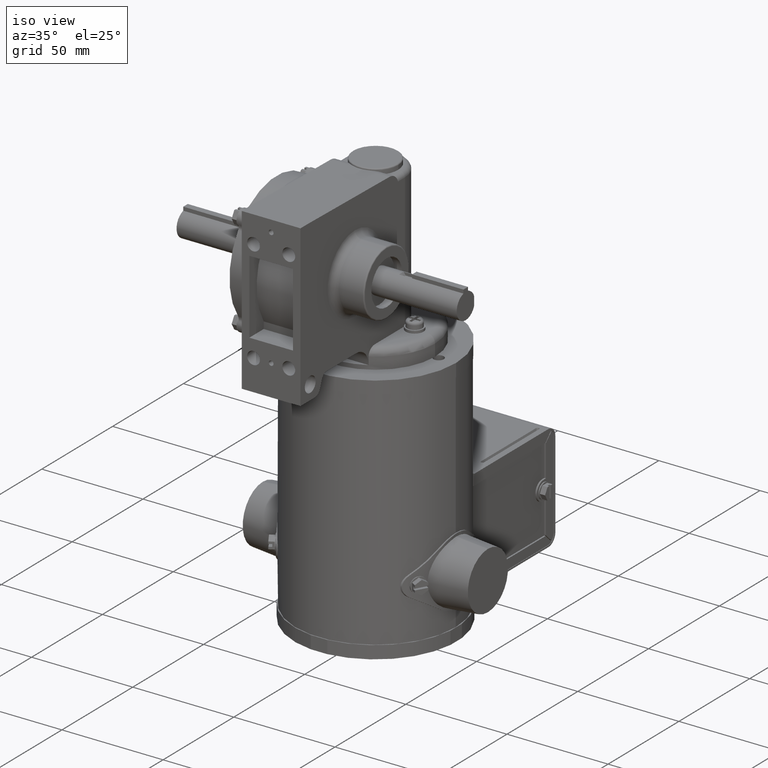
[diagram: clean part render]
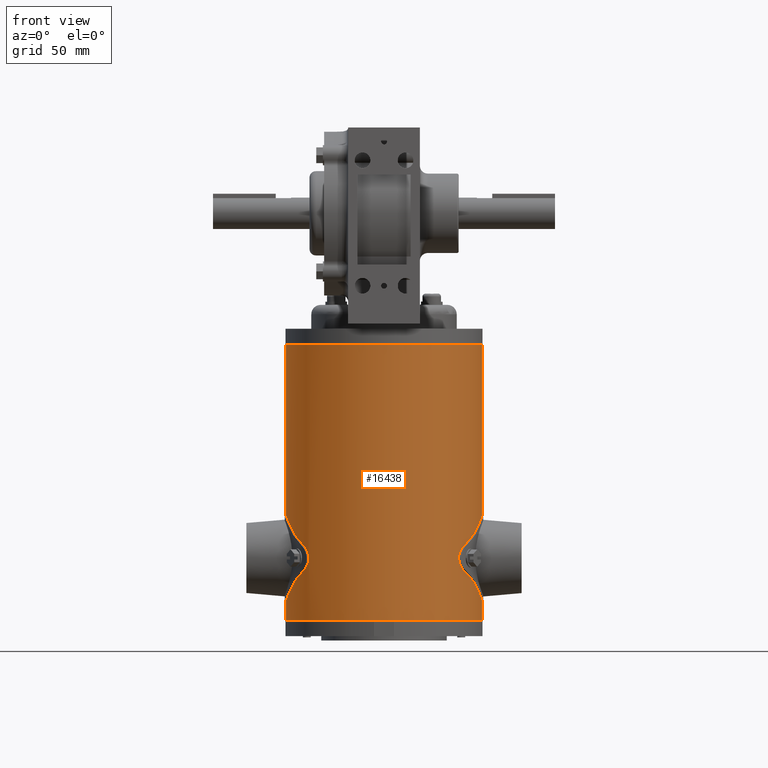
[diagram: tour spotlight — one face highlighted and labeled with its STEP entity id]
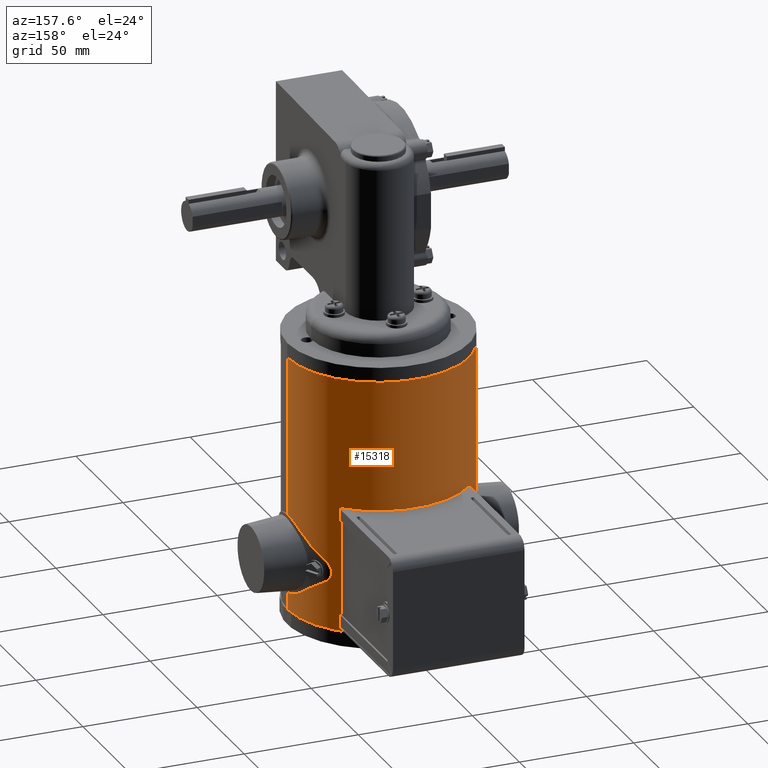
[diagram: tour spotlight — one face highlighted and labeled with its STEP entity id]
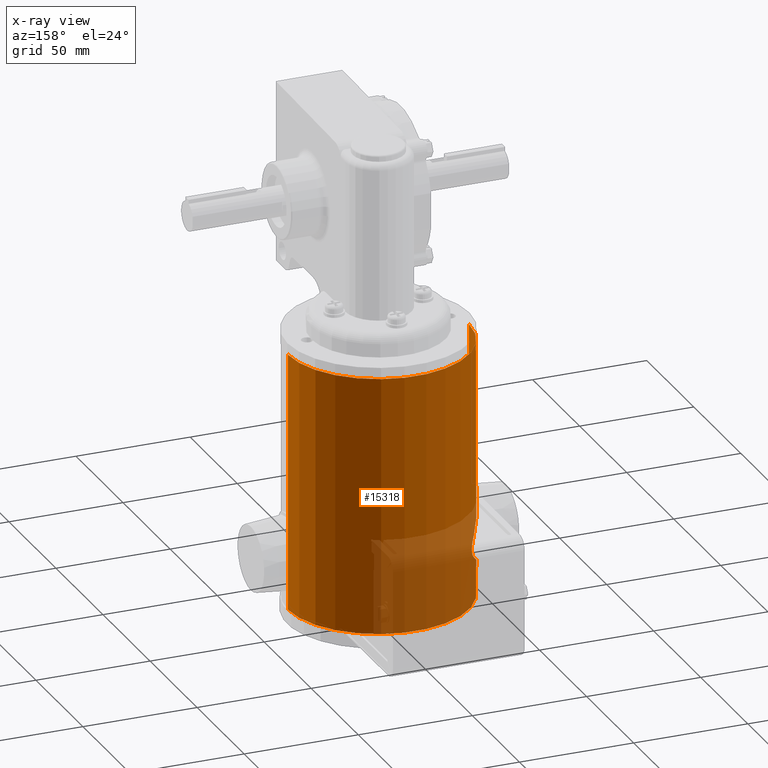
[diagram: x-ray of the same camera — body ghosted, this tour face saturated]
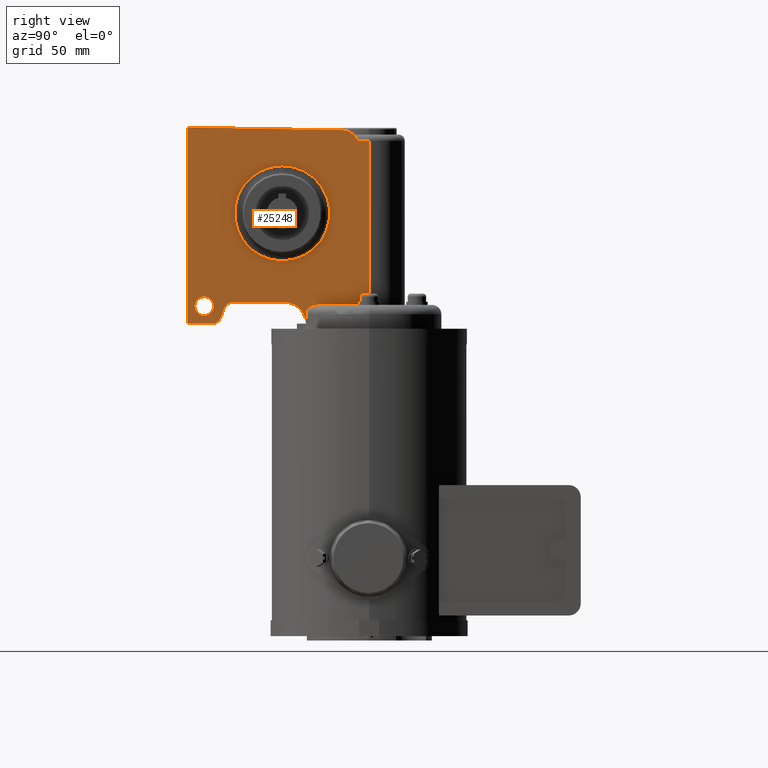
[diagram: tour spotlight — one face highlighted and labeled with its STEP entity id]
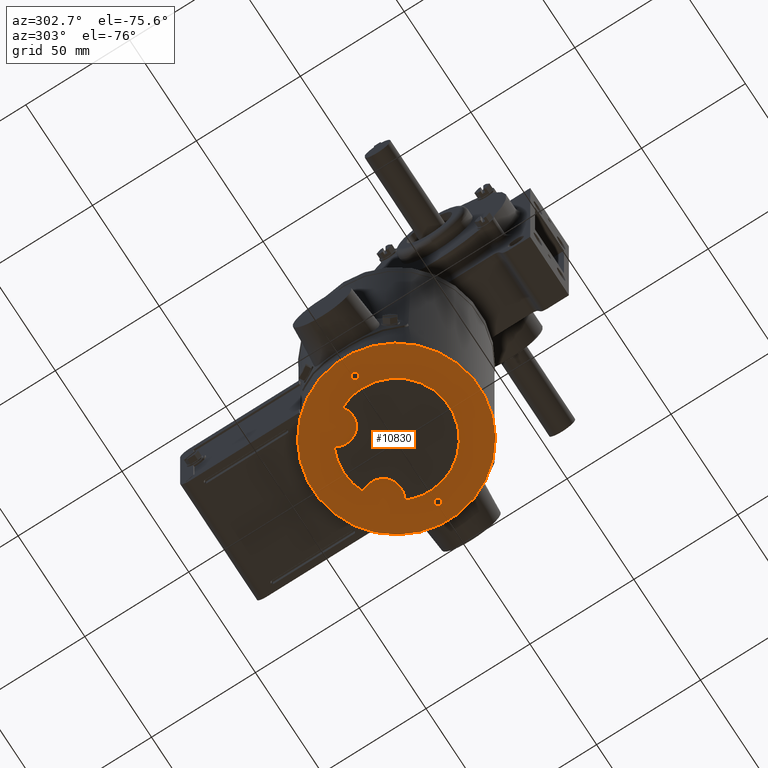
[diagram: tour spotlight — one face highlighted and labeled with its STEP entity id]
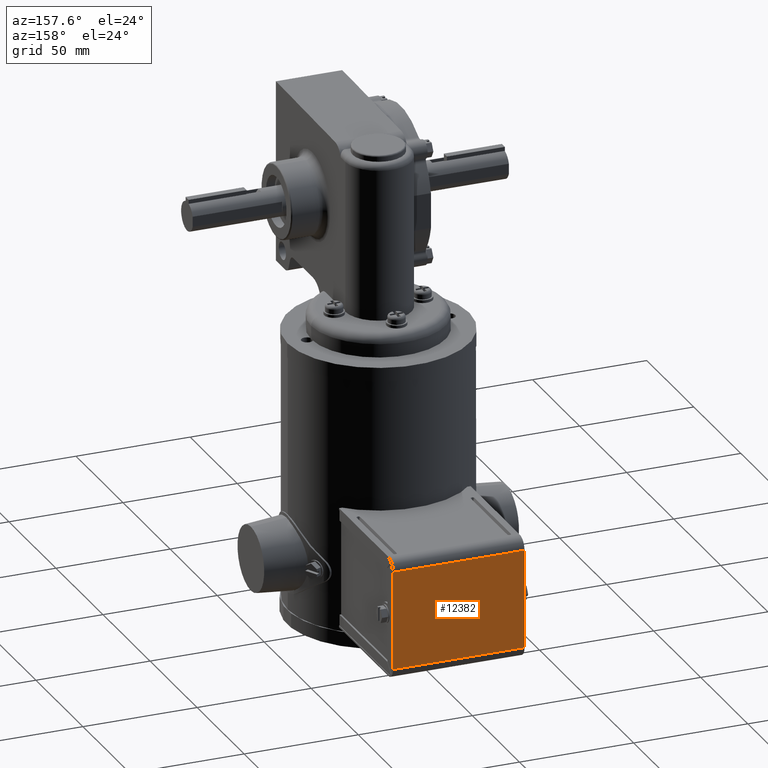
[diagram: tour spotlight — one face highlighted and labeled with its STEP entity id]
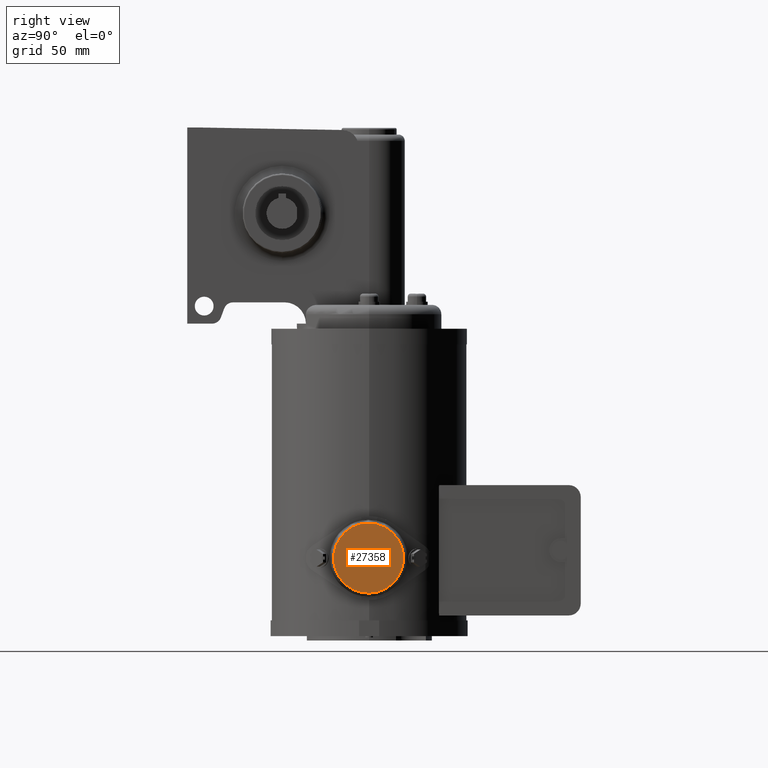
[diagram: tour spotlight — one face highlighted and labeled with its STEP entity id]
A machine part: a face-by-face anatomy tour. The part has 712 B-rep faces; the first image is the clean iso view, then the 6 largest visible faces are spotlighted one at a time (largest first), each with its STEP entity span.

Face 1 — front view, entity #16438. In plain terms, the highlighted cylindrical surface (partial cylindrical patch) has radius 39.6875 mm, axis along (-0, -0, -1).
Definition (entity closure, byte-faithful):
#34 = CYLINDRICAL_SURFACE ( 'NONE', #5380, 1.562500000000000000 ) ;
#137 = CARTESIAN_POINT ( 'NONE',  ( -1.562500000000000000, -1.384300219181684700E-016, -5.867598995289405700 ) ) ;
#676 = ORIENTED_EDGE ( 'NONE', *, *, #9562, .T. ) ;
#945 = CARTESIAN_POINT ( 'NONE',  ( 1.562500000000000000, 5.475866268356075500E-017, -1.734999999999999400 ) ) ;
#949 = CARTESIAN_POINT ( 'NONE',  ( -1.539077312756248300, -0.2713445158698371600, -4.568663051002404900 ) ) ;
#1194 = VERTEX_POINT ( 'NONE', #945 ) ;
#1297 = CARTESIAN_POINT ( 'NONE',  ( -1.202771088547578000, -0.9973906183571963300, -5.150030096984623100 ) ) ;
#1396 = CARTESIAN_POINT ( 'NONE',  ( -1.266479050813990500, -0.9152807493765653400, -5.371224940613926100 ) ) ;
#1455 = VERTEX_POINT ( 'NONE', #2090 ) ;
#1971 = AXIS2_PLACEMENT_3D ( 'NONE', #17185, #4462, #19293 ) ;
#2090 = CARTESIAN_POINT ( 'NONE',  ( -1.562500000000000000, -1.313821469506460000E-016, -4.512401004710594200 ) ) ;
#2205 = ORIENTED_EDGE ( 'NONE', *, *, #24265, .F. ) ;
#2275 = CARTESIAN_POINT ( 'NONE',  ( -1.560145114067408300, -0.08745975141494959100, -5.862003605811491300 ) ) ;
#2520 = LINE ( 'NONE', #24578, #8167 ) ;
#2693 = VERTEX_POINT ( 'NONE', #13903 ) ;
#2722 = LINE ( 'NONE', #22308, #7709 ) ;
#3008 = CARTESIAN_POINT ( 'NONE',  ( 1.562500000000000000, 5.475866268356075500E-017, -6.184999999999999600 ) ) ;
#3063 = CARTESIAN_POINT ( 'NONE',  ( -1.551070285593730800, -0.1893929073080215800, -4.539511792501496500 ) ) ;
#3118 = DIRECTION ( 'NONE',  ( -0.0000000000000000000, -0.0000000000000000000, -1.000000000000000000 ) ) ;
#3398 = CARTESIAN_POINT ( 'NONE',  ( -1.200557292738300600, -1.000034218668088800, -5.209778289249125100 ) ) ;
#3592 = ORIENTED_EDGE ( 'NONE', *, *, #5048, .F. ) ;
#3850 =( BOUNDED_CURVE ( )  B_SPLINE_CURVE ( 3, ( #17833, #7231, #22046, #9353 ),
 .UNSPECIFIED., .F., .F. ) 
 B_SPLINE_CURVE_WITH_KNOTS ( ( 4, 4 ),
 ( 1.823388673818386000, 2.185475772122533700 ),
 .UNSPECIFIED. ) 
 CURVE ( )  GEOMETRIC_REPRESENTATION_ITEM ( )  RATIONAL_B_SPLINE_CURVE ( ( 1.000000000000000000, 0.9891042206414568700, 0.9891042206414568700, 1.000000000000000000 ) ) 
 REPRESENTATION_ITEM ( '' )  );
#4144 = DIRECTION ( 'NONE',  ( -0.0000000000000000000, 0.0000000000000000000, 1.000000000000000000 ) ) ;
#4311 = CARTESIAN_POINT ( 'NONE',  ( -1.562200043405002500, -0.03524606135716090700, -5.866847441945404600 ) ) ;
#4335 = CARTESIAN_POINT ( 'NONE',  ( 0.0000000000000000000, -1.365923996832131600E-016, -1.734999999999999400 ) ) ;
#4399 = CARTESIAN_POINT ( 'NONE',  ( -1.553290144144825500, -0.1726693921874703500, -5.845846923522005400 ) ) ;
#4427 = DIRECTION ( 'NONE',  ( -1.000000000000000000, 0.0000000000000000000, 0.0000000000000000000 ) ) ;
#4462 = DIRECTION ( 'NONE',  ( -0.0000000000000000000, 0.0000000000000000000, 1.000000000000000000 ) ) ;
#4695 = CIRCLE ( 'NONE', #11602, 1.562500000000000000 ) ;
#5048 = EDGE_CURVE ( 'NONE', #5182, #13150, #12705, .T. ) ;
#5182 = VERTEX_POINT ( 'NONE', #19764 ) ;
#5214 = CARTESIAN_POINT ( 'NONE',  ( -1.556441595961137300, -0.1385159275346226900, -4.526724257439188800 ) ) ;
#5380 = AXIS2_PLACEMENT_3D ( 'NONE', #4335, #21298, #4427 ) ;
#5564 = CARTESIAN_POINT ( 'NONE',  ( -1.208723506792984900, -0.9901534245640952700, -5.257950280560159200 ) ) ;
#6105 = EDGE_CURVE ( 'NONE', #5182, #10244, #13269, .T. ) ;
#6362 = CARTESIAN_POINT ( 'NONE',  ( -1.465528439983018400, -0.5740994125747841400, -4.767110206767046800 ) ) ;
#6517 = CARTESIAN_POINT ( 'NONE',  ( -1.544219040756077900, -0.2388697973004140800, -5.823896729445149100 ) ) ;
#7231 = CARTESIAN_POINT ( 'NONE',  ( -1.465528439983018200, -0.5740994125747859200, -5.612889793232954900 ) ) ;
#7313 = VERTEX_POINT ( 'NONE', #27169 ) ;
#7330 = CARTESIAN_POINT ( 'NONE',  ( -1.561314152923097800, -0.06992386902926543700, -4.515243122219272800 ) ) ;
#7592 = CARTESIAN_POINT ( 'NONE',  ( -1.256951911522823600, -0.9282765510392917400, -5.020310620835393100 ) ) ;
#7606 = VECTOR ( 'NONE', #13646, 39.37007874015748100 ) ;
#7687 = CARTESIAN_POINT ( 'NONE',  ( -1.216881756827554100, -0.9801149936231173800, -5.284969435988975800 ) ) ;
#7709 = VECTOR ( 'NONE', #3118, 39.37007874015748100 ) ;
#8167 = VECTOR ( 'NONE', #9785, 39.37007874015748100 ) ;
#8355 = CARTESIAN_POINT ( 'NONE',  ( -1.562500000000000000, -1.365923996832131600E-016, -1.734999999999999400 ) ) ;
#8491 = CARTESIAN_POINT ( 'NONE',  ( -1.385853307866649700, -0.7461731387505441400, -4.888993109465306300 ) ) ;
#8665 = CARTESIAN_POINT ( 'NONE',  ( -1.536050440640836400, -0.2867076248367496600, -5.803649831470647100 ) ) ;
#9349 = CARTESIAN_POINT ( 'NONE',  ( -1.562500000000000000, -1.365923996832131600E-016, -1.734999999999999400 ) ) ;
#9353 = CARTESIAN_POINT ( 'NONE',  ( -1.276497424505992100, -0.9010885501600658400, -5.381277529551358200 ) ) ;
#9462 = CARTESIAN_POINT ( 'NONE',  ( -1.562500000000000000, -1.313821469506460000E-016, -4.512401004710594200 ) ) ;
#9492 = VERTEX_POINT ( 'NONE', #12608 ) ;
#9562 = EDGE_CURVE ( 'NONE', #7313, #2693, #21644, .T. ) ;
#9706 = CARTESIAN_POINT ( 'NONE',  ( -1.230780349542918600, -0.9626599395792957400, -5.061716957566560800 ) ) ;
#9785 = DIRECTION ( 'NONE',  ( -0.0000000000000000000, -0.0000000000000000000, -1.000000000000000000 ) ) ;
#9802 = CARTESIAN_POINT ( 'NONE',  ( -1.227192949297614100, -0.9671795434446249800, -5.309992465898971200 ) ) ;
#10244 = VERTEX_POINT ( 'NONE', #10367 ) ;
#10246 = B_SPLINE_CURVE_WITH_KNOTS ( 'NONE', 3,
 ( #11514, #24174, #13665, #949, #15800, #3063, #17942, #5214, #20033, #7330, #22167, #9462 ),
 .UNSPECIFIED., .F., .F.,
 ( 4, 2, 2, 2, 2, 4 ),
 ( 1.734723475976806900E-018, 0.002658089928629353700, 0.005316179857258705700, 0.006645224821573383000, 0.007974269785888060300, 0.01063235971451741500 ),
 .UNSPECIFIED. ) ;
#10367 = CARTESIAN_POINT ( 'NONE',  ( -1.562500000000000000, -1.365923996832131600E-016, -6.184999999999999600 ) ) ;
#10405 = ORIENTED_EDGE ( 'NONE', *, *, #25964, .F. ) ;
#10791 = CARTESIAN_POINT ( 'NONE',  ( -1.520187495845073400, -0.3623288937213335300, -5.762890645294534800 ) ) ;
#11514 = CARTESIAN_POINT ( 'NONE',  ( -1.512918452875391200, -0.3904920036942278200, -4.637057790000001000 ) ) ;
#11602 = AXIS2_PLACEMENT_3D ( 'NONE', #16879, #4144, #18990 ) ;
#11875 = CARTESIAN_POINT ( 'NONE',  ( -1.217010667943869700, -0.9799550038417683700, -5.094670138082099300 ) ) ;
#11966 = CARTESIAN_POINT ( 'NONE',  ( -1.239169680735900900, -0.9517923175412956700, -5.332685945903056000 ) ) ;
#12279 = EDGE_CURVE ( 'NONE', #22837, #1194, #22065, .T. ) ;
#12608 = CARTESIAN_POINT ( 'NONE',  ( -1.512918452875391200, -0.3904920036942278200, -4.637057790000001000 ) ) ;
#12705 = B_SPLINE_CURVE_WITH_KNOTS ( 'NONE', 3,
 ( #137, #12863, #4311, #14998, #2275, #17130, #4399, #19239, #6517, #21358, #8665, #23480, #10791, #25588 ),
 .UNSPECIFIED., .F., .F.,
 ( 4, 2, 2, 2, 2, 2, 4 ),
 ( 0.01073075220714928700, 0.01205644104789016300, 0.01338212988863104000, 0.01603350757011280300, 0.01735919641085367100, 0.01868488525159453500, 0.02133626293307626700 ),
 .UNSPECIFIED. ) ;
#12863 = CARTESIAN_POINT ( 'NONE',  ( -1.562500000000000700, -0.01755583721811603000, -5.867568763015187400 ) ) ;
#13150 = VERTEX_POINT ( 'NONE', #27257 ) ;
#13269 = LINE ( 'NONE', #9349, #7606 ) ;
#13646 = DIRECTION ( 'NONE',  ( -0.0000000000000000000, -0.0000000000000000000, -1.000000000000000000 ) ) ;
#13665 = CARTESIAN_POINT ( 'NONE',  ( -1.526969826664383600, -0.3327911798563403200, -4.599412088929640600 ) ) ;
#13903 = CARTESIAN_POINT ( 'NONE',  ( -1.276497424505992100, -0.9010885501600658400, -5.381277529551358200 ) ) ;
#14004 = CARTESIAN_POINT ( 'NONE',  ( -1.208803680447874600, -0.9900555206117946900, -5.121739891755133600 ) ) ;
#14097 = CARTESIAN_POINT ( 'NONE',  ( -1.256794113046522100, -0.9284899843044837100, -5.359485395401254200 ) ) ;
#14998 = CARTESIAN_POINT ( 'NONE',  ( -1.561021939769945900, -0.07015528499449773200, -5.864063432867455500 ) ) ;
#15021 = CARTESIAN_POINT ( 'NONE',  ( -1.276497424505992100, -0.9010885501600662800, -4.998722470448640800 ) ) ;
#15800 = CARTESIAN_POINT ( 'NONE',  ( -1.544421334564948000, -0.2393716944465975600, -4.555565082103050200 ) ) ;
#16150 = CARTESIAN_POINT ( 'NONE',  ( -1.200609353054764100, -0.9999717161058272500, -5.169494344888745400 ) ) ;
#16198 = ORIENTED_EDGE ( 'NONE', *, *, #17611, .F. ) ;
#16246 = CARTESIAN_POINT ( 'NONE',  ( -1.276497424505992100, -0.9010885501600658400, -5.381277529551358200 ) ) ;
#16356 = EDGE_CURVE ( 'NONE', #10244, #21972, #4695, .T. ) ;
#16438 = ADVANCED_FACE ( 'NONE', ( #19612 ), #34, .T. ) ;
#16879 = CARTESIAN_POINT ( 'NONE',  ( 0.0000000000000000000, -1.365923996832131600E-016, -6.184999999999999600 ) ) ;
#17130 = CARTESIAN_POINT ( 'NONE',  ( -1.556690818381496000, -0.1389348272775159100, -5.853867705866146100 ) ) ;
#17185 = CARTESIAN_POINT ( 'NONE',  ( 0.0000000000000000000, -1.365923996832131600E-016, -1.734999999999999400 ) ) ;
#17523 = ORIENTED_EDGE ( 'NONE', *, *, #12279, .F. ) ;
#17611 = EDGE_CURVE ( 'NONE', #9492, #1455, #10246, .T. ) ;
#17833 = CARTESIAN_POINT ( 'NONE',  ( -1.512918452875391200, -0.3904920036942281500, -5.742942210000000700 ) ) ;
#17942 = CARTESIAN_POINT ( 'NONE',  ( -1.553047392686554200, -0.1724555011831279400, -4.534789143173613400 ) ) ;
#18105 = ORIENTED_EDGE ( 'NONE', *, *, #21673, .T. ) ;
#18286 = CARTESIAN_POINT ( 'NONE',  ( -1.202675766472856700, -0.9975056545898073300, -5.229386310833292300 ) ) ;
#18990 = DIRECTION ( 'NONE',  ( 1.000000000000000000, 0.0000000000000000000, 0.0000000000000000000 ) ) ;
#19069 = CARTESIAN_POINT ( 'NONE',  ( -1.512918452875391200, -0.3904920036942278200, -4.637057790000001000 ) ) ;
#19239 = CARTESIAN_POINT ( 'NONE',  ( -1.546681152709399800, -0.2224035680412613000, -5.829891504830229100 ) ) ;
#19293 = DIRECTION ( 'NONE',  ( 1.000000000000000000, 0.0000000000000000000, 0.0000000000000000000 ) ) ;
#19612 = FACE_OUTER_BOUND ( 'NONE', #20701, .T. ) ;
#19764 = CARTESIAN_POINT ( 'NONE',  ( -1.562500000000000000, -1.384300219181684700E-016, -5.867598995289405700 ) ) ;
#20033 = CARTESIAN_POINT ( 'NONE',  ( -1.557868358993575800, -0.1214441083015590200, -4.523358752720463700 ) ) ;
#20287 = CARTESIAN_POINT ( 'NONE',  ( -1.266489656975237300, -0.9152657245074648000, -5.008764417002150400 ) ) ;
#20378 = CARTESIAN_POINT ( 'NONE',  ( -1.211200617543809700, -0.9871269801226444400, -5.267212168148251500 ) ) ;
#20701 = EDGE_LOOP ( 'NONE', ( #10405, #17523, #18105, #16198, #27507, #676, #2205, #3592, #25306, #22012 ) ) ;
#21298 = DIRECTION ( 'NONE',  ( -0.0000000000000000000, -0.0000000000000000000, -1.000000000000000000 ) ) ;
#21358 = CARTESIAN_POINT ( 'NONE',  ( -1.538907338918208200, -0.2709897195829379900, -5.810784548836289300 ) ) ;
#21644 = B_SPLINE_CURVE_WITH_KNOTS ( 'NONE', 3,
 ( #15021, #20287, #7592, #22402, #9706, #24511, #11875, #26662, #14004, #1297, #16150, #3398, #18286, #5564, #20378, #7687, #22511, #9802, #24593, #11966, #26759, #14097, #1396, #16246 ),
 .UNSPECIFIED., .F., .F.,
 ( 4, 2, 2, 2, 2, 2, 2, 2, 2, 2, 2, 4 ),
 ( 7.757919228897728500E-018, 0.001509045091471802000, 0.003018090182943596200, 0.003772612728679530600, 0.004527135274415465000, 0.006036180365887332900, 0.007545225457359200900, 0.008299748003095094500, 0.009054270548830989000, 0.009808793094566883500, 0.01056331564030277800, 0.01207236073177457200 ),
 .UNSPECIFIED. ) ;
#21673 = EDGE_CURVE ( 'NONE', #22837, #1455, #2520, .T. ) ;
#21972 = VERTEX_POINT ( 'NONE', #3008 ) ;
#22012 = ORIENTED_EDGE ( 'NONE', *, *, #16356, .T. ) ;
#22046 = CARTESIAN_POINT ( 'NONE',  ( -1.385853307866648800, -0.7461731387505451400, -5.491006890534694500 ) ) ;
#22065 = CIRCLE ( 'NONE', #1971, 1.562500000000000000 ) ;
#22167 = CARTESIAN_POINT ( 'NONE',  ( -1.562500000000000700, -0.03517234814594522000, -4.512461573743044200 ) ) ;
#22308 = CARTESIAN_POINT ( 'NONE',  ( 1.562500000000000000, 5.475866268356075500E-017, -1.734999999999999400 ) ) ;
#22402 = CARTESIAN_POINT ( 'NONE',  ( -1.239135570874998000, -0.9519288314168116200, -5.046682639016032600 ) ) ;
#22511 = CARTESIAN_POINT ( 'NONE',  ( -1.220096821243279900, -0.9761160539892639300, -5.293515956738279900 ) ) ;
#22837 = VERTEX_POINT ( 'NONE', #8355 ) ;
#23309 = CARTESIAN_POINT ( 'NONE',  ( -1.276497424505992100, -0.9010885501600662800, -4.998722470448640800 ) ) ;
#23480 = CARTESIAN_POINT ( 'NONE',  ( -1.526953727836343900, -0.3328699992135821800, -5.780546738034699300 ) ) ;
#24174 = CARTESIAN_POINT ( 'NONE',  ( -1.520204151955937700, -0.3622643614460480100, -4.617063645338880000 ) ) ;
#24265 = EDGE_CURVE ( 'NONE', #13150, #2693, #3850, .T. ) ;
#24511 = CARTESIAN_POINT ( 'NONE',  ( -1.220221101829584100, -0.9759604280772592500, -5.086176366136334600 ) ) ;
#24578 = CARTESIAN_POINT ( 'NONE',  ( -1.562500000000000000, -1.365923996832131600E-016, -1.734999999999999400 ) ) ;
#24593 = CARTESIAN_POINT ( 'NONE',  ( -1.231056605652941900, -0.9622628263962002000, -5.317869695517837900 ) ) ;
#25162 = EDGE_CURVE ( 'NONE', #9492, #7313, #27278, .T. ) ;
#25306 = ORIENTED_EDGE ( 'NONE', *, *, #6105, .T. ) ;
#25588 = CARTESIAN_POINT ( 'NONE',  ( -1.512918452875391200, -0.3904920036942281500, -5.742942210000000700 ) ) ;
#25964 = EDGE_CURVE ( 'NONE', #1194, #21972, #2722, .T. ) ;
#26662 = CARTESIAN_POINT ( 'NONE',  ( -1.211307452407214500, -0.9869959631054459100, -5.112413122724136700 ) ) ;
#26759 = CARTESIAN_POINT ( 'NONE',  ( -1.243440256307010400, -0.9462120744741574500, -5.339674043358464800 ) ) ;
#27169 = CARTESIAN_POINT ( 'NONE',  ( -1.276497424505992100, -0.9010885501600662800, -4.998722470448640800 ) ) ;
#27257 = CARTESIAN_POINT ( 'NONE',  ( -1.512918452875391200, -0.3904920036942281500, -5.742942210000000700 ) ) ;
#27278 =( BOUNDED_CURVE ( )  B_SPLINE_CURVE ( 3, ( #19069, #6362, #8491, #23309 ),
 .UNSPECIFIED., .F., .F. ) 
 B_SPLINE_CURVE_WITH_KNOTS ( ( 4, 4 ),
 ( 4.964981327408177800, 5.327068425712326400 ),
 .UNSPECIFIED. ) 
 CURVE ( )  GEOMETRIC_REPRESENTATION_ITEM ( )  RATIONAL_B_SPLINE_CURVE ( ( 1.000000000000000000, 0.9891042206414566400, 0.9891042206414566400, 1.000000000000000000 ) ) 
 REPRESENTATION_ITEM ( '' )  );
#27507 = ORIENTED_EDGE ( 'NONE', *, *, #25162, .T. ) ;

Face 2 — auxiliary view, entity #15318. An x-ray twin of the same camera follows (body ghosted, this face saturated) — the face is partly hidden behind the body. In plain terms, the highlighted cylindrical surface (partial cylindrical patch) has radius 39.6875 mm, axis along (-0, -0, -1).
Definition (entity closure, byte-faithful):
#590 = ORIENTED_EDGE ( 'NONE', *, *, #17171, .T. ) ;
#603 = CARTESIAN_POINT ( 'NONE',  ( -1.464453033647068000, 0.5764882603363912200, -4.767745082601693200 ) ) ;
#876 = CARTESIAN_POINT ( 'NONE',  ( -1.202759108845953700, 0.9974048809136218900, -5.150133799267695000 ) ) ;
#945 = CARTESIAN_POINT ( 'NONE',  ( 1.562500000000000000, 5.475866268356075500E-017, -1.734999999999999400 ) ) ;
#972 = CARTESIAN_POINT ( 'NONE',  ( -1.266217888051034600, 0.9156408474139156000, -5.370923185322772600 ) ) ;
#1194 = VERTEX_POINT ( 'NONE', #945 ) ;
#1199 = CARTESIAN_POINT ( 'NONE',  ( -1.553111429832710700, 0.1743288255783156900, -4.533958320195612400 ) ) ;
#1455 = VERTEX_POINT ( 'NONE', #2090 ) ;
#1876 = CARTESIAN_POINT ( 'NONE',  ( -1.562500000000000400, 0.0003890089837333592400, -5.867599665187750400 ) ) ;
#1909 = CARTESIAN_POINT ( 'NONE',  ( -1.519392898793451500, 0.3656640777944129600, -5.762271656396778000 ) ) ;
#2090 = CARTESIAN_POINT ( 'NONE',  ( -1.562500000000000000, -1.313821469506460000E-016, -4.512401004710594200 ) ) ;
#2244 = VERTEX_POINT ( 'NONE', #18505 ) ;
#2291 = CIRCLE ( 'NONE', #15995, 1.562500000000000000 ) ;
#2457 = CARTESIAN_POINT ( 'NONE',  ( 0.0000000000000000000, -1.365923996832131600E-016, -6.184999999999999600 ) ) ;
#2520 = LINE ( 'NONE', #24578, #8167 ) ;
#2695 = CARTESIAN_POINT ( 'NONE',  ( -1.464453033647067400, 0.5764882603363928900, -5.612254917398303200 ) ) ;
#2722 = LINE ( 'NONE', #22308, #7709 ) ;
#2724 = CARTESIAN_POINT ( 'NONE',  ( -1.276205345908038900, 0.9015021714204255500, -4.999016118410204400 ) ) ;
#2996 = CARTESIAN_POINT ( 'NONE',  ( -1.200557506401199500, 1.000033962148572300, -5.209724621911746600 ) ) ;
#3008 = CARTESIAN_POINT ( 'NONE',  ( 1.562500000000000000, 5.475866268356075500E-017, -6.184999999999999600 ) ) ;
#3118 = DIRECTION ( 'NONE',  ( -0.0000000000000000000, -0.0000000000000000000, -1.000000000000000000 ) ) ;
#3319 = CARTESIAN_POINT ( 'NONE',  ( -1.543869316982126900, 0.2411301618973626400, -4.556071118101735700 ) ) ;
#3389 = CYLINDRICAL_SURFACE ( 'NONE', #6670, 1.562500000000000000 ) ;
#4033 = CARTESIAN_POINT ( 'NONE',  ( -1.538565566636755700, 0.2742526950113963200, -5.811096468587936500 ) ) ;
#4320 = B_SPLINE_CURVE_WITH_KNOTS ( 'NONE', 3,
 ( #5054, #17771, #7169, #21997, #9301, #24104, #11447, #26244, #13591, #876, #15727, #2996, #17866, #5141, #19961, #7266, #22078, #9386, #24194, #11536, #26330, #13679, #972, #15821 ),
 .UNSPECIFIED., .F., .F.,
 ( 4, 2, 2, 2, 2, 2, 2, 2, 2, 2, 2, 4 ),
 ( 0.0000000000000000000, 0.001505384909347190200, 0.003010769818694380500, 0.003763462273367975800, 0.004516154728041571100, 0.006021539637388758300, 0.007526924546735947300, 0.008279617001409538700, 0.009032309456083131800, 0.009785001910756725000, 0.01053769436543031800, 0.01204307927477749100 ),
 .UNSPECIFIED. ) ;
#4473 =( BOUNDED_CURVE ( )  B_SPLINE_CURVE ( 3, ( #19584, #2695, #9082, #23903 ),
 .UNSPECIFIED., .F., .F. ) 
 B_SPLINE_CURVE_WITH_KNOTS ( ( 4, 4 ),
 ( 1.825722239209544700, 2.185799837471256600 ),
 .UNSPECIFIED. ) 
 CURVE ( )  GEOMETRIC_REPRESENTATION_ITEM ( )  RATIONAL_B_SPLINE_CURVE ( ( 1.000000000000000000, 0.9892244972371673200, 0.9892244972371673200, 1.000000000000000000 ) ) 
 REPRESENTATION_ITEM ( '' )  );
#4614 = DIRECTION ( 'NONE',  ( 1.000000000000000000, 0.0000000000000000000, 0.0000000000000000000 ) ) ;
#5054 = CARTESIAN_POINT ( 'NONE',  ( -1.276205345908038900, 0.9015021714204255500, -4.999016118410204400 ) ) ;
#5141 = CARTESIAN_POINT ( 'NONE',  ( -1.208684840341337300, 0.9902005742737650700, -5.257790492793860800 ) ) ;
#5182 = VERTEX_POINT ( 'NONE', #19764 ) ;
#5381 = CARTESIAN_POINT ( 'NONE',  ( -1.562500000000000000, -1.313821469506460000E-016, -4.512401004710594200 ) ) ;
#5468 = CARTESIAN_POINT ( 'NONE',  ( -1.535546924253825600, 0.2893998461445985700, -4.576514122073889200 ) ) ;
#6085 = FACE_OUTER_BOUND ( 'NONE', #21956, .T. ) ;
#6105 = EDGE_CURVE ( 'NONE', #5182, #10244, #13269, .T. ) ;
#6165 = CARTESIAN_POINT ( 'NONE',  ( -1.550777502989945500, 0.1917853974145905800, -5.840474094488117300 ) ) ;
#6670 = AXIS2_PLACEMENT_3D ( 'NONE', #16252, #24599, #14191 ) ;
#6720 = AXIS2_PLACEMENT_3D ( 'NONE', #2457, #17335, #4614 ) ;
#6955 = CARTESIAN_POINT ( 'NONE',  ( -1.276205345908038900, 0.9015021714204255500, -4.999016118410204400 ) ) ;
#7169 = CARTESIAN_POINT ( 'NONE',  ( -1.256722083874156000, 0.9285867637896432200, -5.020612525425280000 ) ) ;
#7266 = CARTESIAN_POINT ( 'NONE',  ( -1.216808688590171700, 0.9802056152611393600, -5.284762344115307500 ) ) ;
#7597 = CARTESIAN_POINT ( 'NONE',  ( -1.519396347493735800, 0.3656508438809987800, -4.617718926711334300 ) ) ;
#7606 = VECTOR ( 'NONE', #13646, 39.37007874015748100 ) ;
#7709 = VECTOR ( 'NONE', #3118, 39.37007874015748100 ) ;
#8167 = VECTOR ( 'NONE', #9785, 39.37007874015748100 ) ;
#8285 = B_SPLINE_CURVE_WITH_KNOTS ( 'NONE', 3,
 ( #27276, #1909, #16764, #4033, #18884, #6165, #20992, #8299, #23107, #10444, #25208, #12591 ),
 .UNSPECIFIED., .F., .F.,
 ( 4, 2, 2, 2, 2, 4 ),
 ( 6.938893903907228400E-018, 0.002675344271165020600, 0.005350688542330036100, 0.006688360677912542900, 0.008026032813495048000, 0.01070137708466005700 ),
 .UNSPECIFIED. ) ;
#8299 = CARTESIAN_POINT ( 'NONE',  ( -1.556255724776594500, 0.1406018927635717100, -5.853330677134478000 ) ) ;
#8355 = CARTESIAN_POINT ( 'NONE',  ( -1.562500000000000000, -1.365923996832131600E-016, -1.734999999999999400 ) ) ;
#8753 = ORIENTED_EDGE ( 'NONE', *, *, #22247, .F. ) ;
#9082 = CARTESIAN_POINT ( 'NONE',  ( -1.384997611576546800, 0.7474911491054873100, -5.490573925098714400 ) ) ;
#9301 = CARTESIAN_POINT ( 'NONE',  ( -1.230646679497362300, 0.9628302507178737600, -5.061984784417545800 ) ) ;
#9349 = CARTESIAN_POINT ( 'NONE',  ( -1.562500000000000000, -1.365923996832131600E-016, -1.734999999999999400 ) ) ;
#9386 = CARTESIAN_POINT ( 'NONE',  ( -1.227074768623522600, 0.9673293245231179300, -5.309738669992023000 ) ) ;
#9388 = ORIENTED_EDGE ( 'NONE', *, *, #25241, .F. ) ;
#9785 = DIRECTION ( 'NONE',  ( -0.0000000000000000000, -0.0000000000000000000, -1.000000000000000000 ) ) ;
#10216 = ORIENTED_EDGE ( 'NONE', *, *, #24338, .F. ) ;
#10244 = VERTEX_POINT ( 'NONE', #10367 ) ;
#10367 = CARTESIAN_POINT ( 'NONE',  ( -1.562500000000000000, -1.365923996832131600E-016, -6.184999999999999600 ) ) ;
#10377 = EDGE_CURVE ( 'NONE', #21972, #10244, #18493, .T. ) ;
#10444 = CARTESIAN_POINT ( 'NONE',  ( -1.561244467721040900, 0.07157114810961322200, -5.864840209263070900 ) ) ;
#10568 = CARTESIAN_POINT ( 'NONE',  ( -1.512003095759473000, 0.3940214314142945200, -5.742093336882439800 ) ) ;
#10802 = ORIENTED_EDGE ( 'NONE', *, *, #21673, .F. ) ;
#10899 = DIRECTION ( 'NONE',  ( -0.0000000000000000000, 0.0000000000000000000, 1.000000000000000000 ) ) ;
#11064 = ORIENTED_EDGE ( 'NONE', *, *, #6105, .F. ) ;
#11096 = VERTEX_POINT ( 'NONE', #24926 ) ;
#11263 = EDGE_CURVE ( 'NONE', #1194, #22837, #2291, .T. ) ;
#11447 = CARTESIAN_POINT ( 'NONE',  ( -1.216934258274408000, 0.9800497943632935400, -5.094885794588660300 ) ) ;
#11536 = CARTESIAN_POINT ( 'NONE',  ( -1.239008687801378400, 0.9520017064360961600, -5.332411157292249000 ) ) ;
#11781 = CARTESIAN_POINT ( 'NONE',  ( -1.560993504944685500, 0.07082877584020219600, -4.515758463471340400 ) ) ;
#12451 = CARTESIAN_POINT ( 'NONE',  ( -1.562499564293447400, 0.001166868795999379200, -5.867599999999999500 ) ) ;
#12591 = CARTESIAN_POINT ( 'NONE',  ( -1.562499564293447400, 0.001166868795999379200, -5.867599999999999500 ) ) ;
#12910 = EDGE_CURVE ( 'NONE', #14071, #11096, #4320, .T. ) ;
#13269 = LINE ( 'NONE', #9349, #7606 ) ;
#13323 = CARTESIAN_POINT ( 'NONE',  ( -1.512003095759473200, 0.3940214314142938000, -4.637906663117560100 ) ) ;
#13591 = CARTESIAN_POINT ( 'NONE',  ( -1.208764271875118400, 0.9901035880824654600, -5.121901207384308200 ) ) ;
#13646 = DIRECTION ( 'NONE',  ( -0.0000000000000000000, -0.0000000000000000000, -1.000000000000000000 ) ) ;
#13679 = CARTESIAN_POINT ( 'NONE',  ( -1.256568494308132100, 0.9287943740651563000, -5.359188122535173600 ) ) ;
#13923 = CARTESIAN_POINT ( 'NONE',  ( -1.556577729046427500, 0.1402787957395929500, -4.525907035076421900 ) ) ;
#14071 = VERTEX_POINT ( 'NONE', #6955 ) ;
#14091 = ORIENTED_EDGE ( 'NONE', *, *, #12910, .F. ) ;
#14191 = DIRECTION ( 'NONE',  ( -1.000000000000000000, 0.0000000000000000000, 0.0000000000000000000 ) ) ;
#15208 = VERTEX_POINT ( 'NONE', #24326 ) ;
#15318 = ADVANCED_FACE ( 'NONE', ( #6085 ), #3389, .T. ) ;
#15469 = CARTESIAN_POINT ( 'NONE',  ( -1.384997611576547200, 0.7474911491054858600, -4.889426074901283700 ) ) ;
#15727 = CARTESIAN_POINT ( 'NONE',  ( -1.200609134181012600, 0.9999719788813871100, -5.169552055589121200 ) ) ;
#15821 = CARTESIAN_POINT ( 'NONE',  ( -1.276205345908039600, 0.9015021714204254400, -5.380983881589793700 ) ) ;
#15995 = AXIS2_PLACEMENT_3D ( 'NONE', #23589, #10899, #25697 ) ;
#16063 = CARTESIAN_POINT ( 'NONE',  ( -1.546378220024701800, 0.2245116953732350400, -4.550025511703399400 ) ) ;
#16252 = CARTESIAN_POINT ( 'NONE',  ( 0.0000000000000000000, -1.365923996832131600E-016, -1.734999999999999400 ) ) ;
#16728 = CARTESIAN_POINT ( 'NONE',  ( -1.562500000000000000, -1.384300219181684700E-016, -5.867598995289405700 ) ) ;
#16764 = CARTESIAN_POINT ( 'NONE',  ( -1.526261776271325500, 0.3360409704997220900, -5.780081373863194600 ) ) ;
#17171 = EDGE_CURVE ( 'NONE', #21753, #11096, #4473, .T. ) ;
#17335 = DIRECTION ( 'NONE',  ( -0.0000000000000000000, 0.0000000000000000000, 1.000000000000000000 ) ) ;
#17771 = CARTESIAN_POINT ( 'NONE',  ( -1.266228314574616000, 0.9156260871775502300, -5.009066311695556300 ) ) ;
#17861 = EDGE_CURVE ( 'NONE', #2244, #5182, #18073, .T. ) ;
#17866 = CARTESIAN_POINT ( 'NONE',  ( -1.202666836523207400, 0.9975162217124360400, -5.229297965902395300 ) ) ;
#18073 = B_SPLINE_CURVE_WITH_KNOTS ( 'NONE', 3,
 ( #12451, #27241, #1876, #16728 ),
 .UNSPECIFIED., .F., .F.,
 ( 4, 4 ),
 ( 0.01070137708466005700, 0.01073075220714928700 ),
 .UNSPECIFIED. ) ;
#18194 = CARTESIAN_POINT ( 'NONE',  ( -1.538457143848684300, 0.2735431217129392100, -4.569307333547625300 ) ) ;
#18493 = CIRCLE ( 'NONE', #6720, 1.562500000000000000 ) ;
#18505 = CARTESIAN_POINT ( 'NONE',  ( -1.562499564293447400, 0.001166868795999379200, -5.867599999999999500 ) ) ;
#18884 = CARTESIAN_POINT ( 'NONE',  ( -1.544002768383900200, 0.2420882297586114100, -5.824302374300558000 ) ) ;
#19287 = ORIENTED_EDGE ( 'NONE', *, *, #11263, .F. ) ;
#19584 = CARTESIAN_POINT ( 'NONE',  ( -1.512003095759473000, 0.3940214314142945200, -5.742093336882439800 ) ) ;
#19764 = CARTESIAN_POINT ( 'NONE',  ( -1.562500000000000000, -1.384300219181684700E-016, -5.867598995289405700 ) ) ;
#19961 = CARTESIAN_POINT ( 'NONE',  ( -1.211152006004134300, 0.9871865331183169400, -5.267038468791575700 ) ) ;
#20290 = CARTESIAN_POINT ( 'NONE',  ( -1.526283249102340400, 0.3359571455486688500, -4.599861984637566800 ) ) ;
#20525 = ORIENTED_EDGE ( 'NONE', *, *, #17861, .F. ) ;
#20992 = CARTESIAN_POINT ( 'NONE',  ( -1.552792065349757800, 0.1747500355807010700, -5.845224081780817600 ) ) ;
#21453 = ORIENTED_EDGE ( 'NONE', *, *, #25964, .T. ) ;
#21524 = B_SPLINE_CURVE_WITH_KNOTS ( 'NONE', 3,
 ( #5381, #22325, #24425, #11781, #26579, #13923, #1199, #16063, #3319, #18194, #5468, #20290, #7597, #22410 ),
 .UNSPECIFIED., .F., .F.,
 ( 4, 2, 2, 2, 2, 2, 4 ),
 ( 0.01063235971451741500, 0.01197035434445111100, 0.01330834897438480500, 0.01598433823425219500, 0.01732233286418588200, 0.01866032749411956900, 0.02133631675398692600 ),
 .UNSPECIFIED. ) ;
#21673 = EDGE_CURVE ( 'NONE', #22837, #1455, #2520, .T. ) ;
#21753 = VERTEX_POINT ( 'NONE', #10568 ) ;
#21956 = EDGE_LOOP ( 'NONE', ( #19287, #21453, #22192, #11064, #20525, #8753, #590, #14091, #9388, #10216, #10802 ) ) ;
#21972 = VERTEX_POINT ( 'NONE', #3008 ) ;
#21997 = CARTESIAN_POINT ( 'NONE',  ( -1.238969557074216300, 0.9521440072938781600, -5.046967527617780100 ) ) ;
#22078 = CARTESIAN_POINT ( 'NONE',  ( -1.220009837832410200, 0.9762246183471105000, -5.293292775260757000 ) ) ;
#22192 = ORIENTED_EDGE ( 'NONE', *, *, #10377, .T. ) ;
#22247 = EDGE_CURVE ( 'NONE', #21753, #2244, #8285, .T. ) ;
#22308 = CARTESIAN_POINT ( 'NONE',  ( 1.562500000000000000, 5.475866268356075500E-017, -1.734999999999999400 ) ) ;
#22325 = CARTESIAN_POINT ( 'NONE',  ( -1.562499999999999800, 0.01770459773936194200, -4.512370516261245100 ) ) ;
#22350 =( BOUNDED_CURVE ( )  B_SPLINE_CURVE ( 3, ( #13323, #603, #15469, #2724 ),
 .UNSPECIFIED., .F., .F. ) 
 B_SPLINE_CURVE_WITH_KNOTS ( ( 4, 4 ),
 ( 4.967314892799336700, 5.327392491061049300 ),
 .UNSPECIFIED. ) 
 CURVE ( )  GEOMETRIC_REPRESENTATION_ITEM ( )  RATIONAL_B_SPLINE_CURVE ( ( 1.000000000000000000, 0.9892244972371673200, 0.9892244972371673200, 1.000000000000000000 ) ) 
 REPRESENTATION_ITEM ( '' )  );
#22410 = CARTESIAN_POINT ( 'NONE',  ( -1.512003095759473200, 0.3940214314142938000, -4.637906663117560100 ) ) ;
#22837 = VERTEX_POINT ( 'NONE', #8355 ) ;
#23107 = CARTESIAN_POINT ( 'NONE',  ( -1.557714092421231400, 0.1234227413409738300, -5.856709336423483200 ) ) ;
#23589 = CARTESIAN_POINT ( 'NONE',  ( 0.0000000000000000000, -1.365923996832131600E-016, -1.734999999999999400 ) ) ;
#23903 = CARTESIAN_POINT ( 'NONE',  ( -1.276205345908039600, 0.9015021714204254400, -5.380983881589793700 ) ) ;
#24104 = CARTESIAN_POINT ( 'NONE',  ( -1.220130857945978900, 0.9760731080978724000, -5.086406781174178900 ) ) ;
#24194 = CARTESIAN_POINT ( 'NONE',  ( -1.230925141655520200, 0.9624308147315681100, -5.317609686289743300 ) ) ;
#24326 = CARTESIAN_POINT ( 'NONE',  ( -1.512003095759473200, 0.3940214314142938000, -4.637906663117560100 ) ) ;
#24338 = EDGE_CURVE ( 'NONE', #1455, #15208, #21524, .T. ) ;
#24425 = CARTESIAN_POINT ( 'NONE',  ( -1.562194719573277500, 0.03556818949403885800, -4.513042852162862500 ) ) ;
#24578 = CARTESIAN_POINT ( 'NONE',  ( -1.562500000000000000, -1.365923996832131600E-016, -1.734999999999999400 ) ) ;
#24599 = DIRECTION ( 'NONE',  ( -0.0000000000000000000, -0.0000000000000000000, -1.000000000000000000 ) ) ;
#24926 = CARTESIAN_POINT ( 'NONE',  ( -1.276205345908039600, 0.9015021714204254400, -5.380983881589793700 ) ) ;
#25208 = CARTESIAN_POINT ( 'NONE',  ( -1.562473113175536700, 0.03658632670963090500, -5.867600000000001300 ) ) ;
#25241 = EDGE_CURVE ( 'NONE', #15208, #14071, #22350, .T. ) ;
#25697 = DIRECTION ( 'NONE',  ( 1.000000000000000000, 0.0000000000000000000, 0.0000000000000000000 ) ) ;
#25964 = EDGE_CURVE ( 'NONE', #1194, #21972, #2722, .T. ) ;
#26244 = CARTESIAN_POINT ( 'NONE',  ( -1.211256635869421700, 0.9870582305293382800, -5.112593772521509400 ) ) ;
#26330 = CARTESIAN_POINT ( 'NONE',  ( -1.243263700583334000, 0.9464438181199972300, -5.339392770017760800 ) ) ;
#26579 = CARTESIAN_POINT ( 'NONE',  ( -1.560099404547935700, 0.08830417432685062900, -4.517797420003046400 ) ) ;
#27241 = CARTESIAN_POINT ( 'NONE',  ( -1.562499854725163800, 0.0007779652347159072300, -5.867599999999999500 ) ) ;
#27276 = CARTESIAN_POINT ( 'NONE',  ( -1.512003095759473000, 0.3940214314142945200, -5.742093336882439800 ) ) ;

Face 3 — right view, entity #25248. In plain terms, the highlighted planar face has unit normal (1, 0, -0).
Definition (entity closure, byte-faithful):
#10 = CARTESIAN_POINT ( 'NONE',  ( 0.5715999999999998900, -0.8533734162390289600, -1.153999999999999200 ) ) ;
#37 = VECTOR ( 'NONE', #12123, 39.37007874015748100 ) ;
#694 = PLANE ( 'NONE',  #15444 ) ;
#722 = CARTESIAN_POINT ( 'NONE',  ( 0.5716000000000001100, -2.504669079588352600, -1.303999999999999800 ) ) ;
#774 = ORIENTED_EDGE ( 'NONE', *, *, #11436, .T. ) ;
#800 = VERTEX_POINT ( 'NONE', #14393 ) ;
#907 = AXIS2_PLACEMENT_3D ( 'NONE', #15392, #2658, #17520 ) ;
#1424 = EDGE_CURVE ( 'NONE', #22775, #18227, #25243, .T. ) ;
#1441 = ORIENTED_EDGE ( 'NONE', *, *, #1424, .T. ) ;
#1573 = VECTOR ( 'NONE', #12292, 39.37007874015748100 ) ;
#1612 = VECTOR ( 'NONE', #22823, 39.37007874015748100 ) ;
#1718 = DIRECTION ( 'NONE',  ( 1.000000000000000000, 0.0000000000000000000, -0.0000000000000000000 ) ) ;
#1755 = ORIENTED_EDGE ( 'NONE', *, *, #6422, .F. ) ;
#1772 = CARTESIAN_POINT ( 'NONE',  ( 0.5716000000000001100, -1.008530615549176200, -1.303999999999999800 ) ) ;
#2050 = CARTESIAN_POINT ( 'NONE',  ( 0.5716000000000001100, -1.002005022218061900, -1.261776748780231800 ) ) ;
#2059 = LINE ( 'NONE', #9607, #12697 ) ;
#2342 = ORIENTED_EDGE ( 'NONE', *, *, #16794, .T. ) ;
#2414 = CIRCLE ( 'NONE', #14926, 0.1504999999999998000 ) ;
#2588 = VERTEX_POINT ( 'NONE', #5008 ) ;
#2623 = VERTEX_POINT ( 'NONE', #11480 ) ;
#2631 = ORIENTED_EDGE ( 'NONE', *, *, #23907, .T. ) ;
#2658 = DIRECTION ( 'NONE',  ( 1.000000000000000000, 0.0000000000000000000, -0.0000000000000000000 ) ) ;
#2842 = DIRECTION ( 'NONE',  ( 0.0000000000000000000, 0.0000000000000000000, -1.000000000000000000 ) ) ;
#3088 = EDGE_CURVE ( 'NONE', #18272, #16258, #14463, .T. ) ;
#3227 = CARTESIAN_POINT ( 'NONE',  ( 0.5716000000000001100, -1.008530615549176200, -1.303999999999999800 ) ) ;
#3232 = CARTESIAN_POINT ( 'NONE',  ( 0.5716000000000001100, -2.363882296578915000, -1.355759846694647700 ) ) ;
#3500 = CARTESIAN_POINT ( 'NONE',  ( 0.5716000000000001100, -1.385999999999999900, 0.3056010000000004000 ) ) ;
#3975 = EDGE_CURVE ( 'NONE', #25592, #6155, #16975, .T. ) ;
#4060 = ORIENTED_EDGE ( 'NONE', *, *, #4896, .F. ) ;
#4061 = EDGE_CURVE ( 'NONE', #24315, #22775, #27181, .T. ) ;
#4174 = CARTESIAN_POINT ( 'NONE',  ( 0.5715999999999998900, -0.9881721681728639100, -1.232605870213838900 ) ) ;
#4672 = VECTOR ( 'NONE', #20913, 39.37007874015748100 ) ;
#4835 = CIRCLE ( 'NONE', #24629, 0.1500000000000000500 ) ;
#4870 = CARTESIAN_POINT ( 'NONE',  ( 0.5716000000000001100, -0.8317806216184650000, -1.153999999999999900 ) ) ;
#4896 = EDGE_CURVE ( 'NONE', #12693, #22799, #7225, .T. ) ;
#4923 = VECTOR ( 'NONE', #13670, 39.37007874015748100 ) ;
#5008 = CARTESIAN_POINT ( 'NONE',  ( 0.5716000000000001100, -2.504669079588352600, -1.453999999999999700 ) ) ;
#5024 = VERTEX_POINT ( 'NONE', #19051 ) ;
#5256 = DIRECTION ( 'NONE',  ( 0.0000000000000000000, 0.0000000000000000000, -1.000000000000000000 ) ) ;
#5410 = FACE_BOUND ( 'NONE', #20041, .T. ) ;
#5628 = ORIENTED_EDGE ( 'NONE', *, *, #4061, .T. ) ;
#5651 = DIRECTION ( 'NONE',  ( 0.0000000000000000000, 0.0000000000000000000, -1.000000000000000000 ) ) ;
#5730 = DIRECTION ( 'NONE',  ( 0.0000000000000000000, -1.000000000000000000, 0.0000000000000000000 ) ) ;
#5834 = VERTEX_POINT ( 'NONE', #19131 ) ;
#5948 = CIRCLE ( 'NONE', #25368, 0.7581000000000000000 ) ;
#6037 = ORIENTED_EDGE ( 'NONE', *, *, #20184, .T. ) ;
#6078 = AXIS2_PLACEMENT_3D ( 'NONE', #12687, #27470, #14808 ) ;
#6148 = DIRECTION ( 'NONE',  ( 1.000000000000000000, 0.0000000000000000000, -0.0000000000000000000 ) ) ;
#6155 = VERTEX_POINT ( 'NONE', #3227 ) ;
#6222 = EDGE_CURVE ( 'NONE', #7257, #800, #5948, .T. ) ;
#6307 = CARTESIAN_POINT ( 'NONE',  ( 0.5716000000000002200, -0.9681563260437534600, -1.207210684236422100 ) ) ;
#6313 = AXIS2_PLACEMENT_3D ( 'NONE', #18865, #6148, #20972 ) ;
#6422 = EDGE_CURVE ( 'NONE', #2623, #22133, #16232, .T. ) ;
#6579 = VECTOR ( 'NONE', #12074, 39.37007874015748100 ) ;
#7122 = CARTESIAN_POINT ( 'NONE',  ( 0.5716000000000001100, -2.170330920411647200, -1.114000000000000500 ) ) ;
#7225 = LINE ( 'NONE', #10128, #1612 ) ;
#7257 = VERTEX_POINT ( 'NONE', #22839 ) ;
#7260 = CARTESIAN_POINT ( 'NONE',  ( 0.5716000000000001100, 0.001142458140130166200, 1.626451383012779400 ) ) ;
#7471 = DIRECTION ( 'NONE',  ( 0.0000000000000000000, -1.000000000000000000, 0.0000000000000000000 ) ) ;
#7741 = CARTESIAN_POINT ( 'NONE',  ( 0.5716000000000001100, -2.629999999999999000, -1.324500000000000000 ) ) ;
#8251 = VERTEX_POINT ( 'NONE', #9621 ) ;
#8265 = CARTESIAN_POINT ( 'NONE',  ( 0.5716000000000001100, 0.0000000000000000000, -1.153999999999999900 ) ) ;
#8433 = CARTESIAN_POINT ( 'NONE',  ( 0.5716000000000002200, -0.9434829784915445000, -1.186588818244478400 ) ) ;
#8495 = CARTESIAN_POINT ( 'NONE',  ( 0.5716000000000001100, 0.0000000000000000000, 1.461000000000000100 ) ) ;
#9607 = CARTESIAN_POINT ( 'NONE',  ( 0.5716000000000001100, 0.0000000000000000000, -1.153999999999999900 ) ) ;
#9621 = CARTESIAN_POINT ( 'NONE',  ( 0.5716000000000001100, -2.899999999999999500, -1.453999999999999700 ) ) ;
#10001 = AXIS2_PLACEMENT_3D ( 'NONE', #10233, #25005, #12376 ) ;
#10037 = CARTESIAN_POINT ( 'NONE',  ( 0.5716000000000001100, -2.899999999999999500, 1.561000000000000200 ) ) ;
#10128 = CARTESIAN_POINT ( 'NONE',  ( 0.5716000000000001100, 0.0000000000000000000, 1.561000000000000200 ) ) ;
#10233 = CARTESIAN_POINT ( 'NONE',  ( 0.5716000000000001100, -1.385999999999999900, 0.3056010000000004000 ) ) ;
#10281 = CIRCLE ( 'NONE', #10001, 0.7581000000000000000 ) ;
#10494 = CARTESIAN_POINT ( 'NONE',  ( 0.5716000000000001100, -1.008530615549176200, -1.293157894983692800 ) ) ;
#10588 = CARTESIAN_POINT ( 'NONE',  ( 0.5716000000000002200, -0.9153066372856120100, -1.170926735748709200 ) ) ;
#10745 = CARTESIAN_POINT ( 'NONE',  ( 0.5716000000000001100, 3.943839648507994200E-016, -1.114000000000000100 ) ) ;
#10855 = ORIENTED_EDGE ( 'NONE', *, *, #3975, .T. ) ;
#10888 = EDGE_CURVE ( 'NONE', #25592, #5024, #24663, .T. ) ;
#11217 = LINE ( 'NONE', #7260, #4923 ) ;
#11377 = VERTEX_POINT ( 'NONE', #4870 ) ;
#11436 = EDGE_CURVE ( 'NONE', #25062, #18272, #11217, .T. ) ;
#11480 = CARTESIAN_POINT ( 'NONE',  ( 0.5716000000000001100, -2.629999999999999000, -1.023500000000000100 ) ) ;
#11727 = FACE_OUTER_BOUND ( 'NONE', #25106, .T. ) ;
#12074 = DIRECTION ( 'NONE',  ( 0.0000000000000000000, -1.000000000000000000, 0.0000000000000000000 ) ) ;
#12123 = DIRECTION ( 'NONE',  ( 0.0000000000000000000, 0.0000000000000000000, 1.000000000000000000 ) ) ;
#12292 = DIRECTION ( 'NONE',  ( -0.0000000000000000000, -0.0000000000000000000, -1.000000000000000000 ) ) ;
#12362 = CARTESIAN_POINT ( 'NONE',  ( 0.5716000000000001100, -2.311117703421086600, -1.212240153305355100 ) ) ;
#12376 = DIRECTION ( 'NONE',  ( 0.0000000000000000000, 0.0000000000000000000, -1.000000000000000000 ) ) ;
#12400 = EDGE_CURVE ( 'NONE', #2588, #24315, #4835, .T. ) ;
#12687 = CARTESIAN_POINT ( 'NONE',  ( 0.5716000000000001100, -2.170330920411647200, -1.264000000000000200 ) ) ;
#12693 = VERTEX_POINT ( 'NONE', #8495 ) ;
#12697 = VECTOR ( 'NONE', #7471, 39.37007874015748100 ) ;
#12734 = CARTESIAN_POINT ( 'NONE',  ( 0.5716000000000000000, -0.8744924821654001000, -1.157068767057559500 ) ) ;
#13283 = ORIENTED_EDGE ( 'NONE', *, *, #16069, .F. ) ;
#13670 = DIRECTION ( 'NONE',  ( 0.0000000000000000000, -0.9998476951563911600, 0.01745240643729060700 ) ) ;
#14187 = ORIENTED_EDGE ( 'NONE', *, *, #19021, .T. ) ;
#14254 = CARTESIAN_POINT ( 'NONE',  ( 0.5716000000000001100, -1.008530615549176200, -1.453999999999999700 ) ) ;
#14393 = CARTESIAN_POINT ( 'NONE',  ( 0.5716000000000000000, -1.385999999999999900, -0.4524989999999996500 ) ) ;
#14414 = CARTESIAN_POINT ( 'NONE',  ( 0.5716000000000001100, -2.629999999999999000, -1.173999999999999900 ) ) ;
#14463 = LINE ( 'NONE', #25924, #19430 ) ;
#14746 = EDGE_CURVE ( 'NONE', #5834, #25062, #18241, .T. ) ;
#14772 = CARTESIAN_POINT ( 'NONE',  ( 0.5716000000000001100, -1.007196019907257600, -1.282549996616936500 ) ) ;
#14808 = DIRECTION ( 'NONE',  ( 0.0000000000000000000, 0.0000000000000000000, -1.000000000000000000 ) ) ;
#14856 = CARTESIAN_POINT ( 'NONE',  ( 0.5716000000000001100, -0.8317806216184650000, -1.153999999999999900 ) ) ;
#14926 = AXIS2_PLACEMENT_3D ( 'NONE', #14414, #1718, #16571 ) ;
#15392 = CARTESIAN_POINT ( 'NONE',  ( 0.5716000000000001100, -2.629999999999999000, -1.173999999999999900 ) ) ;
#15444 = AXIS2_PLACEMENT_3D ( 'NONE', #26061, #21827, #15558 ) ;
#15558 = DIRECTION ( 'NONE',  ( -0.0000000000000000000, 0.0000000000000000000, -1.000000000000000000 ) ) ;
#15588 = DIRECTION ( 'NONE',  ( 1.000000000000000000, 0.0000000000000000000, -0.0000000000000000000 ) ) ;
#15725 = ORIENTED_EDGE ( 'NONE', *, *, #21169, .F. ) ;
#15960 = CARTESIAN_POINT ( 'NONE',  ( 0.5716000000000001100, -2.700000000000000200, 1.673600000000000000 ) ) ;
#16052 = FACE_BOUND ( 'NONE', #22123, .T. ) ;
#16069 = EDGE_CURVE ( 'NONE', #22799, #11377, #2059, .T. ) ;
#16232 = CIRCLE ( 'NONE', #907, 0.1504999999999998000 ) ;
#16258 = VERTEX_POINT ( 'NONE', #24861 ) ;
#16362 = CARTESIAN_POINT ( 'NONE',  ( 0.5716000000000001100, 0.0000000000000000000, -1.453999999999999700 ) ) ;
#16571 = DIRECTION ( 'NONE',  ( 0.0000000000000000000, 0.0000000000000000000, -1.000000000000000000 ) ) ;
#16772 = CARTESIAN_POINT ( 'NONE',  ( 0.5716000000000001100, -1.137759573252047800, 1.979293960754429800 ) ) ;
#16794 = EDGE_CURVE ( 'NONE', #800, #7257, #10281, .T. ) ;
#16842 = CARTESIAN_POINT ( 'NONE',  ( 0.5716000000000001100, -1.008530615549176200, -1.453999999999999700 ) ) ;
#16907 = CARTESIAN_POINT ( 'NONE',  ( 0.5716000000000000000, -0.9980856497680911100, -1.251565828299541200 ) ) ;
#16975 = LINE ( 'NONE', #14254, #37 ) ;
#17152 = CARTESIAN_POINT ( 'NONE',  ( 0.5716000000000001100, -1.348530615549176300, -1.453999999999999700 ) ) ;
#17520 = DIRECTION ( 'NONE',  ( 0.0000000000000000000, 0.0000000000000000000, -1.000000000000000000 ) ) ;
#17980 = DIRECTION ( 'NONE',  ( 1.000000000000000000, 0.0000000000000000000, -0.0000000000000000000 ) ) ;
#18227 = VERTEX_POINT ( 'NONE', #7122 ) ;
#18241 = CIRCLE ( 'NONE', #6313, 0.2500000000000000600 ) ;
#18272 = VERTEX_POINT ( 'NONE', #15960 ) ;
#18324 = VECTOR ( 'NONE', #25532, 39.37007874015748100 ) ;
#18374 = DIRECTION ( 'NONE',  ( -1.000000000000000000, -0.0000000000000000000, 0.0000000000000000000 ) ) ;
#18865 = CARTESIAN_POINT ( 'NONE',  ( 0.5716000000000001100, -0.4264293031100905900, 1.383876593855900300 ) ) ;
#18950 = ORIENTED_EDGE ( 'NONE', *, *, #14746, .T. ) ;
#19011 = CARTESIAN_POINT ( 'NONE',  ( 0.5716000000000001100, -0.9820950787969717800, -1.223646380565116300 ) ) ;
#19021 = EDGE_CURVE ( 'NONE', #6155, #11377, #19747, .T. ) ;
#19051 = CARTESIAN_POINT ( 'NONE',  ( 0.5716000000000001100, -1.348530615549176300, -1.114000000000000100 ) ) ;
#19131 = CARTESIAN_POINT ( 'NONE',  ( 0.5716000000000001100, -0.1886227005425162600, 1.461000000000000100 ) ) ;
#19430 = VECTOR ( 'NONE', #5730, 39.37007874015748100 ) ;
#19680 = CARTESIAN_POINT ( 'NONE',  ( 0.5716000000000001100, 0.0000000000000000000, 1.461000000000000100 ) ) ;
#19747 = B_SPLINE_CURVE_WITH_KNOTS ( 'NONE', 3,
 ( #1772, #10494, #14772, #2050, #16907, #4174, #19011, #6307, #21134, #8433, #23256, #10588, #25353, #12734, #10, #14856 ),
 .UNSPECIFIED., .F., .F.,
 ( 4, 2, 2, 2, 2, 2, 2, 4 ),
 ( 0.0000000000000000000, 0.0008137334108834623100, 0.001627466821766924600, 0.002441200232650386500, 0.003254933643533849300, 0.004068667054417311600, 0.004882400465300773000, 0.006509867287067688100 ),
 .UNSPECIFIED. ) ;
#20041 = EDGE_LOOP ( 'NONE', ( #1755, #25920 ) ) ;
#20184 = EDGE_CURVE ( 'NONE', #12693, #5834, #26205, .T. ) ;
#20340 = ORIENTED_EDGE ( 'NONE', *, *, #6222, .T. ) ;
#20587 = VECTOR ( 'NONE', #21797, 39.37007874015748100 ) ;
#20913 = DIRECTION ( 'NONE',  ( 0.0000000000000000000, 0.3450656446309765500, 0.9385785533962560700 ) ) ;
#20972 = DIRECTION ( 'NONE',  ( 0.0000000000000000000, 0.0000000000000000000, -1.000000000000000000 ) ) ;
#21134 = CARTESIAN_POINT ( 'NONE',  ( 0.5716000000000002200, -0.9604049383374139200, -1.199830189423728000 ) ) ;
#21169 = EDGE_CURVE ( 'NONE', #2588, #8251, #23494, .T. ) ;
#21478 = ORIENTED_EDGE ( 'NONE', *, *, #10888, .F. ) ;
#21797 = DIRECTION ( 'NONE',  ( 0.0000000000000000000, -1.000000000000000000, 0.0000000000000000000 ) ) ;
#21827 = DIRECTION ( 'NONE',  ( 1.000000000000000000, 0.0000000000000000000, -0.0000000000000000000 ) ) ;
#22123 = EDGE_LOOP ( 'NONE', ( #2342, #20340 ) ) ;
#22133 = VERTEX_POINT ( 'NONE', #7741 ) ;
#22201 = ORIENTED_EDGE ( 'NONE', *, *, #12400, .T. ) ;
#22775 = VERTEX_POINT ( 'NONE', #12362 ) ;
#22799 = VERTEX_POINT ( 'NONE', #8265 ) ;
#22823 = DIRECTION ( 'NONE',  ( -0.0000000000000000000, -0.0000000000000000000, -1.000000000000000000 ) ) ;
#22839 = CARTESIAN_POINT ( 'NONE',  ( 0.5716000000000000000, -1.385999999999999900, 1.063701000000000500 ) ) ;
#22947 = CARTESIAN_POINT ( 'NONE',  ( 0.5716000000000001100, -0.4220662015007679600, 1.633838517644998300 ) ) ;
#22988 = ORIENTED_EDGE ( 'NONE', *, *, #3088, .T. ) ;
#23256 = CARTESIAN_POINT ( 'NONE',  ( 0.5716000000000002200, -0.9343133350376072700, -1.180760426006384200 ) ) ;
#23449 = LINE ( 'NONE', #10037, #1573 ) ;
#23494 = LINE ( 'NONE', #16362, #6579 ) ;
#23907 = EDGE_CURVE ( 'NONE', #16258, #8251, #23449, .T. ) ;
#23912 = LINE ( 'NONE', #10745, #18324 ) ;
#24068 = ORIENTED_EDGE ( 'NONE', *, *, #26272, .T. ) ;
#24315 = VERTEX_POINT ( 'NONE', #3232 ) ;
#24629 = AXIS2_PLACEMENT_3D ( 'NONE', #722, #15588, #2842 ) ;
#24663 = CIRCLE ( 'NONE', #26953, 0.3399999999999999100 ) ;
#24861 = CARTESIAN_POINT ( 'NONE',  ( 0.5716000000000001100, -2.899999999999999500, 1.673600000000000000 ) ) ;
#25005 = DIRECTION ( 'NONE',  ( -1.000000000000000000, -0.0000000000000000000, 0.0000000000000000000 ) ) ;
#25062 = VERTEX_POINT ( 'NONE', #22947 ) ;
#25106 = EDGE_LOOP ( 'NONE', ( #15725, #22201, #5628, #1441, #24068, #21478, #10855, #14187, #13283, #4060, #6037, #18950, #774, #22988, #2631 ) ) ;
#25243 = CIRCLE ( 'NONE', #6078, 0.1500000000000000500 ) ;
#25248 = ADVANCED_FACE ( 'NONE', ( #5410, #16052, #11727 ), #694, .T. ) ;
#25353 = CARTESIAN_POINT ( 'NONE',  ( 0.5716000000000001100, -0.9053716973741354800, -1.166850245104571200 ) ) ;
#25368 = AXIS2_PLACEMENT_3D ( 'NONE', #3500, #18374, #5651 ) ;
#25520 = EDGE_CURVE ( 'NONE', #22133, #2623, #2414, .T. ) ;
#25532 = DIRECTION ( 'NONE',  ( 0.0000000000000000000, 1.000000000000000000, 1.474332578881492900E-016 ) ) ;
#25592 = VERTEX_POINT ( 'NONE', #16842 ) ;
#25920 = ORIENTED_EDGE ( 'NONE', *, *, #25520, .F. ) ;
#25924 = CARTESIAN_POINT ( 'NONE',  ( 0.5716000000000001100, -0.2499999999999998100, 1.673600000000000000 ) ) ;
#26061 = CARTESIAN_POINT ( 'NONE',  ( 0.5716000000000001100, 0.0000000000000000000, 1.561000000000000200 ) ) ;
#26205 = LINE ( 'NONE', #19680, #20587 ) ;
#26272 = EDGE_CURVE ( 'NONE', #18227, #5024, #23912, .T. ) ;
#26953 = AXIS2_PLACEMENT_3D ( 'NONE', #17152, #17980, #5256 ) ;
#27181 = LINE ( 'NONE', #16772, #4672 ) ;
#27470 = DIRECTION ( 'NONE',  ( -1.000000000000000000, -0.0000000000000000000, 0.0000000000000000000 ) ) ;

Face 4 — auxiliary view, entity #10830. In plain terms, the highlighted planar face has unit normal (-0, 0, 1).
Definition (entity closure, byte-faithful):
#452 = DIRECTION ( 'NONE',  ( 1.000000000000000000, 0.0000000000000000000, 0.0000000000000000000 ) ) ;
#575 = CARTESIAN_POINT ( 'NONE',  ( -0.3658067811865476900, 0.7071067811865472400, -6.434999999999999600 ) ) ;
#624 = CARTESIAN_POINT ( 'NONE',  ( -1.570000000000000300, 0.1596859730846742800, -6.434999999999999600 ) ) ;
#1033 = CARTESIAN_POINT ( 'NONE',  ( 0.7071067811865476800, 0.7071067811865472400, -6.434999999999999600 ) ) ;
#1059 = ORIENTED_EDGE ( 'NONE', *, *, #21457, .T. ) ;
#1134 = EDGE_CURVE ( 'NONE', #21832, #2550, #8400, .T. ) ;
#1282 = LINE ( 'NONE', #18023, #5598 ) ;
#1492 = EDGE_CURVE ( 'NONE', #15918, #20907, #12722, .T. ) ;
#1622 = CARTESIAN_POINT ( 'NONE',  ( -0.7071067811865475700, 0.7071067811865472400, -6.434999999999999600 ) ) ;
#1630 = VERTEX_POINT ( 'NONE', #9994 ) ;
#1925 = DIRECTION ( 'NONE',  ( 1.000000000000000000, 0.0000000000000000000, 0.0000000000000000000 ) ) ;
#2008 = VERTEX_POINT ( 'NONE', #13031 ) ;
#2016 = ORIENTED_EDGE ( 'NONE', *, *, #25087, .F. ) ;
#2045 = VERTEX_POINT ( 'NONE', #2514 ) ;
#2098 = EDGE_CURVE ( 'NONE', #21832, #20202, #2541, .T. ) ;
#2474 = CARTESIAN_POINT ( 'NONE',  ( -0.9037184350467563100, 0.4281273060161444600, -6.434999999999999600 ) ) ;
#2514 = CARTESIAN_POINT ( 'NONE',  ( -1.000000000000000000, -1.412771976847784000E-017, -6.434999999999999600 ) ) ;
#2541 = LINE ( 'NONE', #11818, #25054 ) ;
#2550 = VERTEX_POINT ( 'NONE', #11309 ) ;
#3009 = ORIENTED_EDGE ( 'NONE', *, *, #8821, .F. ) ;
#3146 = DIRECTION ( 'NONE',  ( 1.000000000000000000, 0.0000000000000000000, 0.0000000000000000000 ) ) ;
#3430 = ORIENTED_EDGE ( 'NONE', *, *, #10758, .F. ) ;
#3719 = DIRECTION ( 'NONE',  ( 1.000000000000000000, 0.0000000000000000000, 0.0000000000000000000 ) ) ;
#3915 = PLANE ( 'NONE',  #15644 ) ;
#4188 = CIRCLE ( 'NONE', #13431, 1.578100000000000100 ) ;
#4722 = EDGE_CURVE ( 'NONE', #2045, #1630, #13233, .T. ) ;
#4891 = EDGE_LOOP ( 'NONE', ( #12854, #3430, #15512, #23502, #17870, #1059, #15332 ) ) ;
#4945 = DIRECTION ( 'NONE',  ( 2.610045853819359900E-016, -1.000000000000000000, 0.0000000000000000000 ) ) ;
#4946 = DIRECTION ( 'NONE',  ( -0.0000000000000000000, 0.0000000000000000000, 1.000000000000000000 ) ) ;
#5065 = ORIENTED_EDGE ( 'NONE', *, *, #2098, .T. ) ;
#5172 = FACE_OUTER_BOUND ( 'NONE', #12535, .T. ) ;
#5358 = CARTESIAN_POINT ( 'NONE',  ( -0.1596859730846889300, -1.569999999999998700, -6.434999999999999600 ) ) ;
#5598 = VECTOR ( 'NONE', #26400, 39.37007874015748100 ) ;
#5911 = DIRECTION ( 'NONE',  ( -0.0000000000000000000, 0.0000000000000000000, 1.000000000000000000 ) ) ;
#6146 = DIRECTION ( 'NONE',  ( -0.0000000000000000000, 0.0000000000000000000, 1.000000000000000000 ) ) ;
#6373 = AXIS2_PLACEMENT_3D ( 'NONE', #19956, #7262, #22073 ) ;
#6555 = CIRCLE ( 'NONE', #26103, 1.000000000000000000 ) ;
#7051 = VECTOR ( 'NONE', #17210, 39.37007874015748100 ) ;
#7262 = DIRECTION ( 'NONE',  ( -0.0000000000000000000, 0.0000000000000000000, 1.000000000000000000 ) ) ;
#7510 = DIRECTION ( 'NONE',  ( -0.0000000000000000000, 0.0000000000000000000, 1.000000000000000000 ) ) ;
#8147 = FACE_BOUND ( 'NONE', #4891, .T. ) ;
#8400 = CIRCLE ( 'NONE', #19907, 1.578100000000000100 ) ;
#8626 = EDGE_CURVE ( 'NONE', #26699, #24730, #4188, .T. ) ;
#8745 = CIRCLE ( 'NONE', #15972, 1.578100000000000100 ) ;
#8821 = EDGE_CURVE ( 'NONE', #26786, #20202, #16120, .T. ) ;
#9093 = CARTESIAN_POINT ( 'NONE',  ( 1.570000000000000300, -0.1596859730846742800, -6.434999999999999600 ) ) ;
#9473 = VECTOR ( 'NONE', #4945, 39.37007874015748100 ) ;
#9994 = CARTESIAN_POINT ( 'NONE',  ( 1.000000000000000000, -1.365923996832131600E-016, -6.434999999999999600 ) ) ;
#10119 = EDGE_CURVE ( 'NONE', #15918, #2045, #15866, .T. ) ;
#10542 = ORIENTED_EDGE ( 'NONE', *, *, #1134, .F. ) ;
#10713 = DIRECTION ( 'NONE',  ( -0.0000000000000000000, 0.0000000000000000000, 1.000000000000000000 ) ) ;
#10758 = EDGE_CURVE ( 'NONE', #20907, #21638, #23423, .T. ) ;
#10830 = ADVANCED_FACE ( 'NONE', ( #5172, #8147 ), #3915, .F. ) ;
#11309 = CARTESIAN_POINT ( 'NONE',  ( 0.1596859730846718300, 1.570000000000000500, -6.434999999999999600 ) ) ;
#11510 = DIRECTION ( 'NONE',  ( -0.0000000000000000000, 0.0000000000000000000, 1.000000000000000000 ) ) ;
#11766 = ORIENTED_EDGE ( 'NONE', *, *, #8626, .F. ) ;
#11818 = CARTESIAN_POINT ( 'NONE',  ( 1.570000000000000300, 6.829619984160659000E-016, -6.434999999999999600 ) ) ;
#11980 = CARTESIAN_POINT ( 'NONE',  ( 0.0000000000000000000, -1.365923996832131600E-016, -6.434999999999999600 ) ) ;
#12105 = ORIENTED_EDGE ( 'NONE', *, *, #21039, .T. ) ;
#12519 = VERTEX_POINT ( 'NONE', #5358 ) ;
#12535 = EDGE_LOOP ( 'NONE', ( #5065, #3009, #14049, #2016, #20594, #11766, #12105, #10542 ) ) ;
#12596 = CIRCLE ( 'NONE', #21137, 0.3412999999999998800 ) ;
#12722 = CIRCLE ( 'NONE', #24502, 0.3412999999999998800 ) ;
#12768 = CARTESIAN_POINT ( 'NONE',  ( 0.1596859730846881300, -1.569999999999998700, -6.434999999999999600 ) ) ;
#12854 = ORIENTED_EDGE ( 'NONE', *, *, #17671, .T. ) ;
#12944 = VERTEX_POINT ( 'NONE', #17961 ) ;
#13031 = CARTESIAN_POINT ( 'NONE',  ( -1.570000000000000300, -0.1596859730846753900, -6.434999999999999600 ) ) ;
#13172 = DIRECTION ( 'NONE',  ( -0.0000000000000000000, 0.0000000000000000000, 1.000000000000000000 ) ) ;
#13233 = CIRCLE ( 'NONE', #6373, 1.000000000000000000 ) ;
#13260 = EDGE_CURVE ( 'NONE', #12519, #26786, #18361, .T. ) ;
#13364 = CARTESIAN_POINT ( 'NONE',  ( -1.570000000000000300, -4.097771990496395300E-016, -6.434999999999999600 ) ) ;
#13431 = AXIS2_PLACEMENT_3D ( 'NONE', #17655, #4946, #19760 ) ;
#14049 = ORIENTED_EDGE ( 'NONE', *, *, #13260, .F. ) ;
#14103 = DIRECTION ( 'NONE',  ( 1.000000000000000000, 0.0000000000000000000, 0.0000000000000000000 ) ) ;
#14643 = DIRECTION ( 'NONE',  ( -0.0000000000000000000, 0.0000000000000000000, 1.000000000000000000 ) ) ;
#15075 = CARTESIAN_POINT ( 'NONE',  ( -4.097771990496391900E-016, -1.569999999999999200, -6.434999999999999600 ) ) ;
#15165 = LINE ( 'NONE', #13364, #9473 ) ;
#15332 = ORIENTED_EDGE ( 'NONE', *, *, #21015, .F. ) ;
#15512 = ORIENTED_EDGE ( 'NONE', *, *, #1492, .F. ) ;
#15644 = AXIS2_PLACEMENT_3D ( 'NONE', #18862, #6146, #20968 ) ;
#15866 = CIRCLE ( 'NONE', #26227, 1.000000000000000000 ) ;
#15894 = DIRECTION ( 'NONE',  ( -0.0000000000000000000, 0.0000000000000000000, 1.000000000000000000 ) ) ;
#15918 = VERTEX_POINT ( 'NONE', #2474 ) ;
#15972 = AXIS2_PLACEMENT_3D ( 'NONE', #27284, #14643, #1925 ) ;
#16120 = CIRCLE ( 'NONE', #17199, 1.578100000000000100 ) ;
#16466 = DIRECTION ( 'NONE',  ( -0.0000000000000000000, 0.0000000000000000000, 1.000000000000000000 ) ) ;
#17199 = AXIS2_PLACEMENT_3D ( 'NONE', #11980, #26767, #14103 ) ;
#17210 = DIRECTION ( 'NONE',  ( 1.000000000000000000, -2.610045853819359400E-016, 0.0000000000000000000 ) ) ;
#17655 = CARTESIAN_POINT ( 'NONE',  ( 0.0000000000000000000, -1.365923996832131600E-016, -6.434999999999999600 ) ) ;
#17671 = EDGE_CURVE ( 'NONE', #12944, #21638, #18504, .T. ) ;
#17870 = ORIENTED_EDGE ( 'NONE', *, *, #4722, .T. ) ;
#17875 = AXIS2_PLACEMENT_3D ( 'NONE', #20213, #7510, #22334 ) ;
#17961 = CARTESIAN_POINT ( 'NONE',  ( 0.4281273060161449000, 0.9037184350467563100, -6.434999999999999600 ) ) ;
#18023 = CARTESIAN_POINT ( 'NONE',  ( 1.365923996832132100E-016, 1.570000000000000500, -6.434999999999999600 ) ) ;
#18361 = LINE ( 'NONE', #15075, #7051 ) ;
#18504 = CIRCLE ( 'NONE', #17875, 1.000000000000000200 ) ;
#18628 = CARTESIAN_POINT ( 'NONE',  ( 0.0000000000000000000, -1.365923996832131600E-016, -6.434999999999999600 ) ) ;
#18862 = CARTESIAN_POINT ( 'NONE',  ( 0.0000000000000000000, 0.0000000000000000000, -6.434999999999999600 ) ) ;
#19760 = DIRECTION ( 'NONE',  ( 1.000000000000000000, 0.0000000000000000000, 0.0000000000000000000 ) ) ;
#19907 = AXIS2_PLACEMENT_3D ( 'NONE', #24172, #11510, #26310 ) ;
#19956 = CARTESIAN_POINT ( 'NONE',  ( 0.0000000000000000000, -1.365923996832131600E-016, -6.434999999999999600 ) ) ;
#20202 = VERTEX_POINT ( 'NONE', #9093 ) ;
#20213 = CARTESIAN_POINT ( 'NONE',  ( 0.0000000000000000000, -1.365923996832131600E-016, -6.434999999999999600 ) ) ;
#20594 = ORIENTED_EDGE ( 'NONE', *, *, #24206, .F. ) ;
#20728 = DIRECTION ( 'NONE',  ( 1.000000000000000000, 0.0000000000000000000, 0.0000000000000000000 ) ) ;
#20907 = VERTEX_POINT ( 'NONE', #575 ) ;
#20968 = DIRECTION ( 'NONE',  ( 1.000000000000000000, 0.0000000000000000000, 0.0000000000000000000 ) ) ;
#21015 = EDGE_CURVE ( 'NONE', #12944, #25660, #12596, .T. ) ;
#21039 = EDGE_CURVE ( 'NONE', #26699, #2550, #1282, .T. ) ;
#21137 = AXIS2_PLACEMENT_3D ( 'NONE', #1033, #15894, #3146 ) ;
#21388 = CARTESIAN_POINT ( 'NONE',  ( 1.570000000000000300, 0.1596859730846753900, -6.434999999999999600 ) ) ;
#21457 = EDGE_CURVE ( 'NONE', #1630, #25660, #6555, .T. ) ;
#21638 = VERTEX_POINT ( 'NONE', #26458 ) ;
#21817 = AXIS2_PLACEMENT_3D ( 'NONE', #1622, #16466, #3719 ) ;
#21832 = VERTEX_POINT ( 'NONE', #21388 ) ;
#22073 = DIRECTION ( 'NONE',  ( 1.000000000000000000, 0.0000000000000000000, 0.0000000000000000000 ) ) ;
#22334 = DIRECTION ( 'NONE',  ( 1.000000000000000000, 0.0000000000000000000, 0.0000000000000000000 ) ) ;
#23013 = CARTESIAN_POINT ( 'NONE',  ( -0.1596859730846715600, 1.570000000000000500, -6.434999999999999600 ) ) ;
#23394 = CARTESIAN_POINT ( 'NONE',  ( -0.7071067811865475700, 0.7071067811865472400, -6.434999999999999600 ) ) ;
#23423 = CIRCLE ( 'NONE', #21817, 0.3412999999999998800 ) ;
#23502 = ORIENTED_EDGE ( 'NONE', *, *, #10119, .T. ) ;
#24172 = CARTESIAN_POINT ( 'NONE',  ( 0.0000000000000000000, -1.365923996832131600E-016, -6.434999999999999600 ) ) ;
#24206 = EDGE_CURVE ( 'NONE', #24730, #2008, #15165, .T. ) ;
#24502 = AXIS2_PLACEMENT_3D ( 'NONE', #23394, #10713, #25506 ) ;
#24730 = VERTEX_POINT ( 'NONE', #624 ) ;
#25054 = VECTOR ( 'NONE', #26617, 39.37007874015748100 ) ;
#25087 = EDGE_CURVE ( 'NONE', #2008, #12519, #8745, .T. ) ;
#25506 = DIRECTION ( 'NONE',  ( 1.000000000000000000, 0.0000000000000000000, 0.0000000000000000000 ) ) ;
#25660 = VERTEX_POINT ( 'NONE', #25672 ) ;
#25672 = CARTESIAN_POINT ( 'NONE',  ( 0.9037184350467563100, 0.4281273060161444000, -6.434999999999999600 ) ) ;
#25830 = CARTESIAN_POINT ( 'NONE',  ( 0.0000000000000000000, -1.365923996832131600E-016, -6.434999999999999600 ) ) ;
#26103 = AXIS2_PLACEMENT_3D ( 'NONE', #25830, #13172, #452 ) ;
#26227 = AXIS2_PLACEMENT_3D ( 'NONE', #18628, #5911, #20728 ) ;
#26310 = DIRECTION ( 'NONE',  ( 1.000000000000000000, 0.0000000000000000000, 0.0000000000000000000 ) ) ;
#26400 = DIRECTION ( 'NONE',  ( 1.000000000000000000, -8.700152846064533100E-017, 0.0000000000000000000 ) ) ;
#26458 = CARTESIAN_POINT ( 'NONE',  ( -0.4281273060161450200, 0.9037184350467562000, -6.434999999999999600 ) ) ;
#26617 = DIRECTION ( 'NONE',  ( 4.350076423032266600E-016, -1.000000000000000000, 0.0000000000000000000 ) ) ;
#26699 = VERTEX_POINT ( 'NONE', #23013 ) ;
#26767 = DIRECTION ( 'NONE',  ( -0.0000000000000000000, 0.0000000000000000000, 1.000000000000000000 ) ) ;
#26786 = VERTEX_POINT ( 'NONE', #12768 ) ;
#27284 = CARTESIAN_POINT ( 'NONE',  ( 0.0000000000000000000, -1.365923996832131600E-016, -6.434999999999999600 ) ) ;

Face 5 — auxiliary view, entity #12382. In plain terms, the highlighted planar face has unit normal (-0, 1, 0).
Definition (entity closure, byte-faithful):
#54 = CARTESIAN_POINT ( 'NONE',  ( 1.130000000000004600, 3.373699999999994600, -5.915549999672518500 ) ) ;
#148 = CARTESIAN_POINT ( 'NONE',  ( -1.129999999999991900, 3.373700000000003900, -5.915550000000000500 ) ) ;
#899 = DIRECTION ( 'NONE',  ( -1.000000000000000000, -0.0000000000000000000, -0.0000000000000000000 ) ) ;
#1862 = CARTESIAN_POINT ( 'NONE',  ( -1.129999999999991900, 3.373700000000018100, -7.982285539722513200E-015 ) ) ;
#2178 = DIRECTION ( 'NONE',  ( -1.000000000000000000, -0.0000000000000000000, -0.0000000000000000000 ) ) ;
#4475 = VECTOR ( 'NONE', #899, 39.37007874015748100 ) ;
#6310 = LINE ( 'NONE', #54, #18936 ) ;
#6558 = CARTESIAN_POINT ( 'NONE',  ( -1.129999999999991900, 3.373700000000008400, -4.218650000000002900 ) ) ;
#7288 = ORIENTED_EDGE ( 'NONE', *, *, #24804, .F. ) ;
#8246 = DIRECTION ( 'NONE',  ( 9.841007537551340100E-030, 2.366033002259383400E-015, 1.000000000000000000 ) ) ;
#8713 = LINE ( 'NONE', #1862, #13694 ) ;
#8829 = ORIENTED_EDGE ( 'NONE', *, *, #20004, .T. ) ;
#8983 = CARTESIAN_POINT ( 'NONE',  ( 1.130000000000004600, 3.373699999999994600, 0.0000000000000000000 ) ) ;
#9058 = EDGE_LOOP ( 'NONE', ( #8829, #22860, #7288, #10446 ) ) ;
#9702 = LINE ( 'NONE', #24110, #23944 ) ;
#10350 = CARTESIAN_POINT ( 'NONE',  ( 1.138700000000008000, 3.373699999999995000, -5.915550000000000500 ) ) ;
#10446 = ORIENTED_EDGE ( 'NONE', *, *, #25291, .F. ) ;
#10964 = VERTEX_POINT ( 'NONE', #16034 ) ;
#11118 = DIRECTION ( 'NONE',  ( 0.0000000000000000000, -0.0000000000000000000, 1.000000000000000000 ) ) ;
#11452 = DIRECTION ( 'NONE',  ( 9.841007537551340100E-030, 2.366033002259383400E-015, 1.000000000000000000 ) ) ;
#12382 = ADVANCED_FACE ( 'NONE', ( #26360 ), #13171, .T. ) ;
#13171 = PLANE ( 'NONE',  #17618 ) ;
#13582 = VERTEX_POINT ( 'NONE', #148 ) ;
#13614 = CARTESIAN_POINT ( 'NONE',  ( 1.130000000000004600, 3.373699999999994600, -4.218649999999998500 ) ) ;
#13694 = VECTOR ( 'NONE', #8246, 39.37007874015748100 ) ;
#15414 = EDGE_CURVE ( 'NONE', #13582, #26320, #8713, .T. ) ;
#16034 = CARTESIAN_POINT ( 'NONE',  ( 1.138700000000008000, 3.373699999999999500, -4.218650000000002900 ) ) ;
#17618 = AXIS2_PLACEMENT_3D ( 'NONE', #8983, #23795, #11118 ) ;
#18936 = VECTOR ( 'NONE', #2178, 39.37007874015748100 ) ;
#20004 = EDGE_CURVE ( 'NONE', #22287, #13582, #6310, .T. ) ;
#20706 = LINE ( 'NONE', #13614, #4475 ) ;
#22287 = VERTEX_POINT ( 'NONE', #10350 ) ;
#22860 = ORIENTED_EDGE ( 'NONE', *, *, #15414, .T. ) ;
#23795 = DIRECTION ( 'NONE',  ( -0.0000000000000000000, 1.000000000000000000, 0.0000000000000000000 ) ) ;
#23944 = VECTOR ( 'NONE', #11452, 39.37007874015748100 ) ;
#24110 = CARTESIAN_POINT ( 'NONE',  ( 1.138700000000008000, 3.373700000000009200, -7.982285539722513200E-015 ) ) ;
#24804 = EDGE_CURVE ( 'NONE', #10964, #26320, #20706, .T. ) ;
#25291 = EDGE_CURVE ( 'NONE', #22287, #10964, #9702, .T. ) ;
#26320 = VERTEX_POINT ( 'NONE', #6558 ) ;
#26360 = FACE_OUTER_BOUND ( 'NONE', #9058, .T. ) ;

Face 6 — right view, entity #27358. In plain terms, the highlighted planar face has unit normal (1, -0, 0).
Definition (entity closure, byte-faithful):
#1474 = VERTEX_POINT ( 'NONE', #21180 ) ;
#2645 = ORIENTED_EDGE ( 'NONE', *, *, #6539, .F. ) ;
#3103 = VERTEX_POINT ( 'NONE', #19661 ) ;
#4083 = AXIS2_PLACEMENT_3D ( 'NONE', #11248, #26035, #13374 ) ;
#4175 = CARTESIAN_POINT ( 'NONE',  ( 2.195000000000000300, 0.0000000000000000000, 0.0000000000000000000 ) ) ;
#5070 = DIRECTION ( 'NONE',  ( -1.000000000000000000, 0.0000000000000000000, -0.0000000000000000000 ) ) ;
#6308 = DIRECTION ( 'NONE',  ( 0.0000000000000000000, 0.0000000000000000000, -1.000000000000000000 ) ) ;
#6539 = EDGE_CURVE ( 'NONE', #1474, #3103, #9219, .T. ) ;
#6598 = AXIS2_PLACEMENT_3D ( 'NONE', #17787, #5070, #19897 ) ;
#8347 = PLANE ( 'NONE',  #8754 ) ;
#8754 = AXIS2_PLACEMENT_3D ( 'NONE', #4175, #19013, #6308 ) ;
#9219 = CIRCLE ( 'NONE', #6598, 0.5578195852962972700 ) ;
#11248 = CARTESIAN_POINT ( 'NONE',  ( 2.195000000000000300, -0.009186274349188066800, -5.191946291046614100 ) ) ;
#13374 = DIRECTION ( 'NONE',  ( 0.0000000000000000000, 0.0000000000000000000, -1.000000000000000000 ) ) ;
#14740 = ORIENTED_EDGE ( 'NONE', *, *, #20912, .F. ) ;
#16592 = CIRCLE ( 'NONE', #4083, 0.5578195852962972700 ) ;
#17787 = CARTESIAN_POINT ( 'NONE',  ( 2.195000000000000300, -0.009186274349188066800, -5.191946291046614100 ) ) ;
#18219 = FACE_OUTER_BOUND ( 'NONE', #20739, .T. ) ;
#19013 = DIRECTION ( 'NONE',  ( 1.000000000000000000, -0.0000000000000000000, 0.0000000000000000000 ) ) ;
#19661 = CARTESIAN_POINT ( 'NONE',  ( 2.195000000000000300, -0.009186274349188139700, -4.634126705750316200 ) ) ;
#19897 = DIRECTION ( 'NONE',  ( 0.0000000000000000000, 0.0000000000000000000, -1.000000000000000000 ) ) ;
#20739 = EDGE_LOOP ( 'NONE', ( #2645, #14740 ) ) ;
#20912 = EDGE_CURVE ( 'NONE', #3103, #1474, #16592, .T. ) ;
#21180 = CARTESIAN_POINT ( 'NONE',  ( 2.195000000000000300, -0.009186274349188066800, -5.749765876342911100 ) ) ;
#26035 = DIRECTION ( 'NONE',  ( -1.000000000000000000, 0.0000000000000000000, -0.0000000000000000000 ) ) ;
#27358 = ADVANCED_FACE ( 'NONE', ( #18219 ), #8347, .T. ) ;